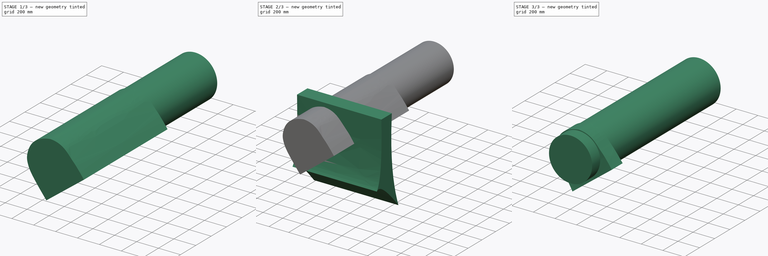
[diagram: build sequence overview — one tinted view per stage of 3, left to right]
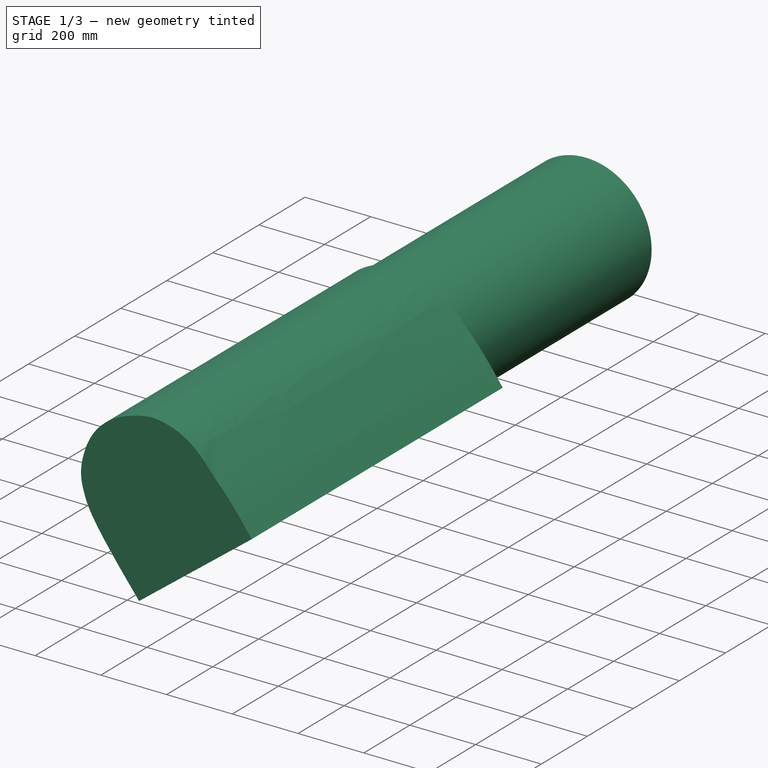
[diagram: stage 1 of 3 — iso view after this stage's code; geometry added in this stage tinted green]
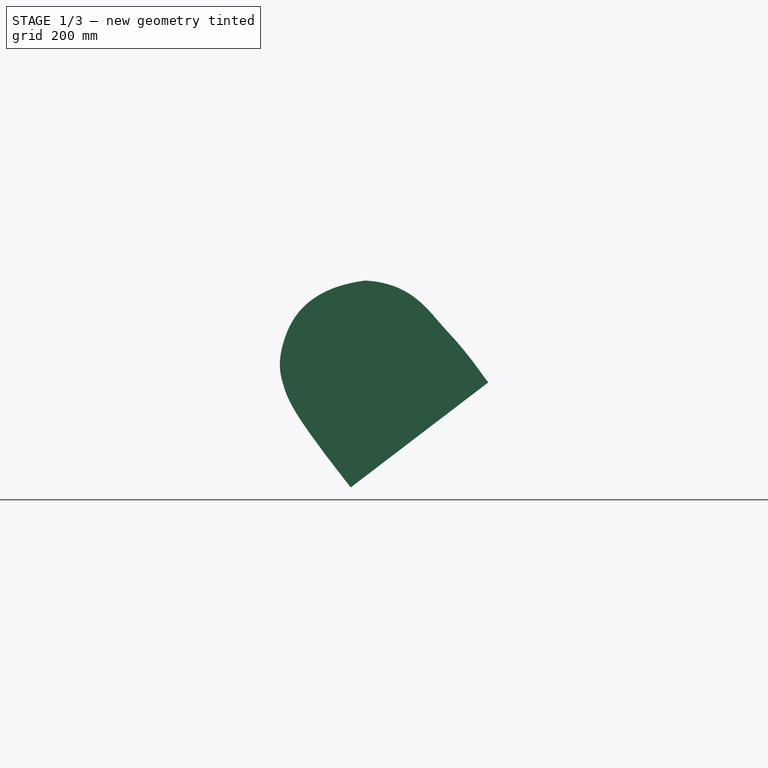
[diagram: stage 1 of 3 — front view after this stage's code; geometry added in this stage tinted green]
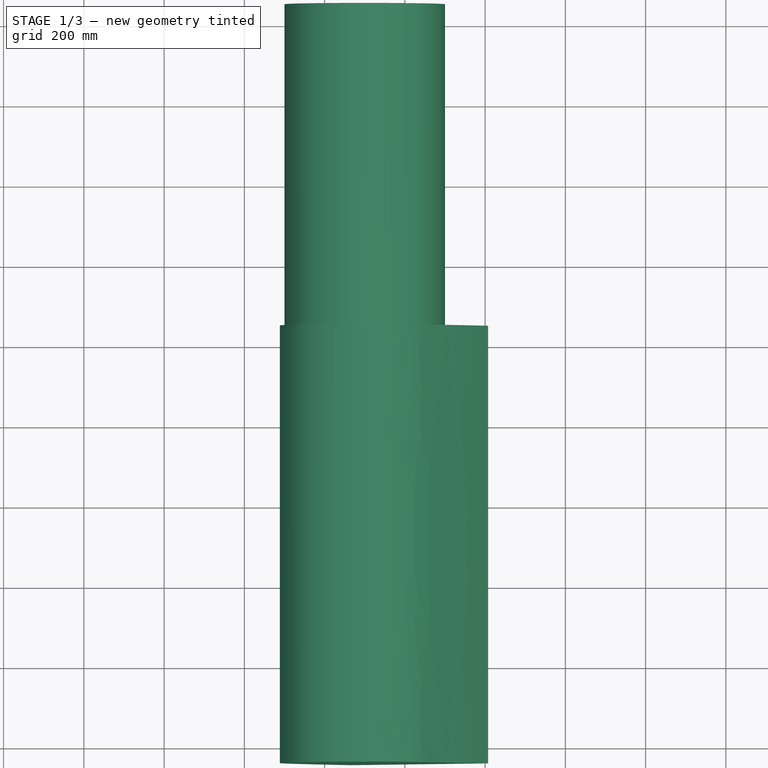
[diagram: stage 1 of 3 — top view after this stage's code; geometry added in this stage tinted green]
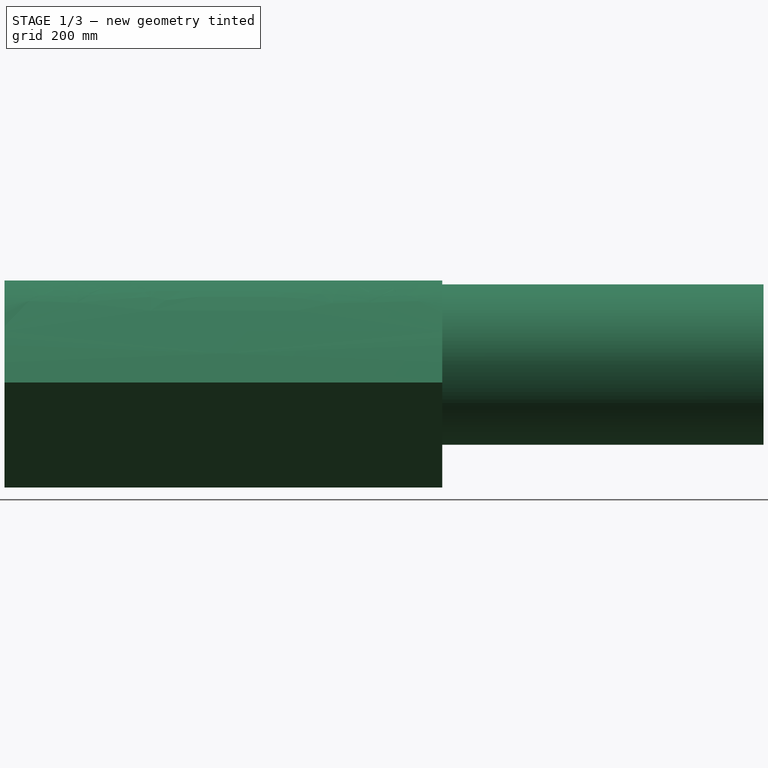
[diagram: stage 1 of 3 — right view after this stage's code; geometry added in this stage tinted green]
FCSTD DOCUMENT  (FreeCAD 0.17R13509 (Git))
Label: grid2
License: All rights reserved
LicenseURL: http://en.wikipedia.org/wiki/All_rights_reserved
objects: Part::Part2DObjectPython×119, Part::Loft×30, Sketcher::SketchObject×4, Part::Cylinder×2, Part::Sweep×2, Part::MultiCommon×1
note: 158 computed .brp shape members not serialized (recipe doc carries the construction recipe); baked Part::Feature solids carry a one-line shape summary decoded from their .brp

FEATURE [Part::Sweep] Sweep001
  Frenet = false
  Sections = -> [Sketch]
  Solid = true
  Spine = -> Sketch002 [Edge1]
  Transition = 1
FEATURE [Part::Part2DObjectPython] DWire  # Draft 2D object (typed FeaturePython)
  ChamferSize = 0
  Closed = false
  End = (4801,0,199)
  FilletRadius = 0
  Length = 3760.13
  MakeFace = false
  Points = (3600) [(5000,0,-3400),(5000,0,-3399),(5000,0,-3398),(5000,0,-3397),(5000,0,-3396),(5000,0,-3395),(5000,0,-3394),(5000,0,-3393),(5000,0,-3392),(5000,0,-3391),+3590 more]
  Start = (5000,0,-3400)
  Subdivisions = 0
FEATURE [Part::Part2DObjectPython] DWire001  # Draft 2D object (typed FeaturePython)
  ChamferSize = 0
  Closed = false
  End = (4844.69,-1236.5,-2902)
  FilletRadius = 0
  Length = 706.388
  MakeFace = false
  Points = (32) [(4943.78,-747.667,-3402),(4941.27,-764.109,-3385.33),(4938.7,-780.542,-3368.67),(4936.08,-796.967,-3352),(4933.4,-813.382,-3335.33),+27 more]
  Start = (4943.78,-747.667,-3402)
  Subdivisions = 0
FEATURE [Part::Part2DObjectPython] DWire002  # Draft 2D object (typed FeaturePython)
  ChamferSize = 0
  Closed = false
  End = (4845.65,-1232.75,-2898)
  FilletRadius = 0
  Length = 706.443
  MakeFace = false
  Points = (32) [(4944.37,-743.764,-3398),(4941.87,-760.21,-3381.33),(4939.31,-776.647,-3364.67),(4936.7,-793.075,-3348),(4934.04,-809.495,-3331.33),+27 more]
  Start = (4944.37,-743.764,-3398)
  Subdivisions = 0
FEATURE [Part::Part2DObjectPython] DWire003  # Draft 2D object (typed FeaturePython)
  ChamferSize = 0
  Closed = false
  End = (4430.27,-1238.01,-2898)
  FilletRadius = 0
  Length = 856.312
  MakeFace = false
  Points = (32) [(4538.7,-748.463,-3398),(4542.36,-761.665,-3381.33),(4564.67,-778.131,-3364.67),(4584.7,-794.589,-3348),(4601.45,-811.038,-3331.33),+27 more]
  Start = (4538.7,-748.463,-3398)
  Subdivisions = 0
FEATURE [Part::Part2DObjectPython] DWire004  # Draft 2D object (typed FeaturePython)
  ChamferSize = 0
  Closed = false
  End = (4429.23,-1241.73,-2902)
  FilletRadius = 0
  Length = 857.628
  MakeFace = false
  Points = (32) [(4538.05,-752.374,-3402),(4542.36,-765.665,-3385.33),(4564.67,-782.131,-3368.67),(4584.7,-798.589,-3352),(4601.45,-815.038,-3335.33),+27 more]
  Start = (4538.05,-752.374,-3402)
  Subdivisions = 0
FEATURE [Part::Loft] Loft
  Closed = true
  MaxDegree = 5
  Ruled = true
  Sections = -> [DWire001,DWire002,DWire003,DWire004]
  Solid = false
FEATURE [Part::Part2DObjectPython] DWire005  # Draft 2D object (typed FeaturePython)
  ChamferSize = 0
  Closed = false
  End = (4845.65,1232.75,-2898)
  FilletRadius = 0
  Length = 706.443
  MakeFace = false
  Points = (32) [(4944.37,743.764,-3398),(4941.87,760.21,-3381.33),(4939.31,776.647,-3364.67),(4936.7,793.075,-3348),(4934.04,809.495,-3331.33),+27 more]
  Start = (4944.37,743.764,-3398)
  Subdivisions = 0
FEATURE [Part::Part2DObjectPython] DWire006  # Draft 2D object (typed FeaturePython)
  ChamferSize = 0
  Closed = false
  End = (4844.69,1236.5,-2902)
  FilletRadius = 0
  Length = 706.388
  MakeFace = false
  Points = (32) [(4943.78,747.667,-3402),(4941.27,764.109,-3385.33),(4938.7,780.542,-3368.67),(4936.08,796.967,-3352),(4933.4,813.382,-3335.33),+27 more]
  Start = (4943.78,747.667,-3402)
  Subdivisions = 0
FEATURE [Part::Part2DObjectPython] DWire007  # Draft 2D object (typed FeaturePython)
  ChamferSize = 0
  Closed = false
  End = (4429.23,1241.73,-2902)
  FilletRadius = 0
  Length = 857.628
  MakeFace = false
  Points = (32) [(4538.05,752.374,-3402),(4542.36,765.665,-3385.33),(4564.67,782.131,-3368.67),(4584.7,798.589,-3352),(4601.45,815.038,-3335.33),+27 more]
  Start = (4538.05,752.374,-3402)
  Subdivisions = 0
FEATURE [Part::Part2DObjectPython] DWire008  # Draft 2D object (typed FeaturePython)
  ChamferSize = 0
  Closed = false
  End = (4430.27,1238.01,-2898)
  FilletRadius = 0
  Length = 856.312
  MakeFace = false
  Points = (32) [(4538.7,748.463,-3398),(4542.36,761.665,-3381.33),(4564.67,778.131,-3364.67),(4584.7,794.589,-3348),(4601.45,811.038,-3331.33),+27 more]
  Start = (4538.7,748.463,-3398)
  Subdivisions = 0
FEATURE [Part::Loft] Loft001
  Closed = true
  MaxDegree = 5
  Ruled = true
  Sections = -> [DWire005,DWire006,DWire007,DWire008]
  Solid = false
FEATURE [Part::Part2DObjectPython] DWire009  # Draft 2D object (typed FeaturePython)
  ChamferSize = 0
  Closed = false
  End = (4844.69,-1236.5,-2402)
  FilletRadius = 0
  Length = 1412.78
  MakeFace = false
  Points = (64) [(4993.68,-251.389,-3402),(4992.81,-267.999,-3385.33),(4991.89,-284.607,-3368.67),(4990.92,-301.211,-3352),(4989.89,-317.813,-3335.33),+59 more]
  Start = (4993.68,-251.389,-3402)
  Subdivisions = 0
FEATURE [Part::Part2DObjectPython] DWire010  # Draft 2D object (typed FeaturePython)
  ChamferSize = 0
  Closed = false
  End = (4845.65,-1232.75,-2398)
  FilletRadius = 0
  Length = 1412.86
  MakeFace = false
  Points = (64) [(4993.88,-247.407,-3398),(4993.02,-264.019,-3381.33),(4992.12,-280.628,-3364.67),(4991.16,-297.234,-3348),(4990.14,-313.836,-3331.33),+59 more]
  Start = (4993.88,-247.407,-3398)
  Subdivisions = 0
FEATURE [Part::Part2DObjectPython] DWire011  # Draft 2D object (typed FeaturePython)
  ChamferSize = 0
  Closed = false
  End = (4430.27,-1238.01,-2398)
  FilletRadius = 0
  Length = 1706.38
  MakeFace = false
  Points = (64) [(4593.24,-249.225,-3398),(4593.91,-264.54,-3381.33),(4617.88,-281.181,-3364.67),(4639.56,-297.819,-3348),(4657.97,-314.453,-3331.33),+59 more]
  Start = (4593.24,-249.225,-3398)
  Subdivisions = 0
FEATURE [Part::Part2DObjectPython] DWire012  # Draft 2D object (typed FeaturePython)
  ChamferSize = 0
  Closed = false
  End = (4429.23,-1241.73,-2402)
  FilletRadius = 0
  Length = 1707.97
  MakeFace = false
  Points = (64) [(4593.02,-253.234,-3402),(4593.91,-268.54,-3385.33),(4617.88,-285.181,-3368.67),(4639.56,-301.819,-3352),(4657.97,-318.453,-3335.33),+59 more]
  Start = (4593.02,-253.234,-3402)
  Subdivisions = 0
FEATURE [Part::Loft] Loft002
  Closed = true
  MaxDegree = 5
  Ruled = true
  Sections = -> [DWire009,DWire010,DWire011,DWire012]
  Solid = false
FEATURE [Part::Part2DObjectPython] DWire013  # Draft 2D object (typed FeaturePython)
  ChamferSize = 0
  Closed = false
  End = (4845.65,1232.75,-2398)
  FilletRadius = 0
  Length = 1412.86
  MakeFace = false
  Points = (64) [(4993.88,247.407,-3398),(4993.02,264.019,-3381.33),(4992.12,280.628,-3364.67),(4991.16,297.234,-3348),(4990.14,313.836,-3331.33),+59 more]
  Start = (4993.88,247.407,-3398)
  Subdivisions = 0
FEATURE [Part::Part2DObjectPython] DWire014  # Draft 2D object (typed FeaturePython)
  ChamferSize = 0
  Closed = false
  End = (4844.69,1236.5,-2402)
  FilletRadius = 0
  Length = 1412.78
  MakeFace = false
  Points = (64) [(4993.68,251.389,-3402),(4992.81,267.999,-3385.33),(4991.89,284.607,-3368.67),(4990.92,301.211,-3352),(4989.89,317.813,-3335.33),+59 more]
  Start = (4993.68,251.389,-3402)
  Subdivisions = 0
FEATURE [Part::Part2DObjectPython] DWire015  # Draft 2D object (typed FeaturePython)
  ChamferSize = 0
  Closed = false
  End = (4429.23,1241.73,-2402)
  FilletRadius = 0
  Length = 1707.97
  MakeFace = false
  Points = (64) [(4593.02,253.234,-3402),(4593.91,268.54,-3385.33),(4617.88,285.181,-3368.67),(4639.56,301.819,-3352),(4657.97,318.453,-3335.33),+59 more]
  Start = (4593.02,253.234,-3402)
  Subdivisions = 0
FEATURE [Part::Part2DObjectPython] DWire016  # Draft 2D object (typed FeaturePython)
  ChamferSize = 0
  Closed = false
  End = (4430.27,1238.01,-2398)
  FilletRadius = 0
  Length = 1706.38
  MakeFace = false
  Points = (64) [(4593.24,249.225,-3398),(4593.91,264.54,-3381.33),(4617.88,281.181,-3364.67),(4639.56,297.819,-3348),(4657.97,314.453,-3331.33),+59 more]
  Start = (4593.24,249.225,-3398)
  Subdivisions = 0
FEATURE [Part::Loft] Loft003
  Closed = true
  MaxDegree = 5
  Ruled = true
  Sections = -> [DWire013,DWire014,DWire015,DWire016]
  Solid = false
FEATURE [Part::Part2DObjectPython] DWire017  # Draft 2D object (typed FeaturePython)
  ChamferSize = 0
  Closed = false
  End = (4844.69,-1236.5,-1902)
  FilletRadius = 0
  Length = 1624.7
  MakeFace = false
  Points = (74) [(4998.96,-101.789,-3052),(4998.6,-118.418,-3035.33),(4998.18,-135.046,-3018.67),(4997.7,-151.672,-3002),(4997.17,-168.297,-2985.33),+69 more]
  Start = (4998.96,-101.789,-3052)
  Subdivisions = 0
FEATURE [Part::Part2DObjectPython] DWire018  # Draft 2D object (typed FeaturePython)
  ChamferSize = 0
  Closed = false
  End = (4845.65,-1232.75,-1898)
  FilletRadius = 0
  Length = 1624.78
  MakeFace = false
  Points = (74) [(4999.04,-97.7985,-3048),(4998.69,-114.428,-3031.33),(4998.28,-131.057,-3014.67),(4997.82,-147.684,-2998),(4997.3,-164.31,-2981.33),+69 more]
  Start = (4999.04,-97.7985,-3048)
  Subdivisions = 0
FEATURE [Part::Part2DObjectPython] DWire019  # Draft 2D object (typed FeaturePython)
  ChamferSize = 0
  Closed = false
  End = (4430.27,-1238.01,-1898)
  FilletRadius = 0
  Length = 1956.46
  MakeFace = false
  Points = (74) [(4693.01,-97.9926,-3048),(4698.09,-114.656,-3031.33),(4697.67,-131.317,-3014.67),(4691.76,-147.978,-2998),(4680.6,-164.636,-2981.33),+69 more]
  Start = (4693.01,-97.9926,-3048)
  Subdivisions = 0
FEATURE [Part::Part2DObjectPython] DWire020  # Draft 2D object (typed FeaturePython)
  ChamferSize = 0
  Closed = false
  End = (4429.23,-1241.73,-1902)
  FilletRadius = 0
  Length = 1958.07
  MakeFace = false
  Points = (74) [(4693.01,-101.993,-3052),(4698.09,-118.656,-3035.33),(4697.67,-135.317,-3018.67),(4691.76,-151.978,-3002),(4680.6,-168.636,-2985.33),+69 more]
  Start = (4693.01,-101.993,-3052)
  Subdivisions = 0
FEATURE [Part::Loft] Loft004
  Closed = true
  MaxDegree = 5
  Ruled = true
  Sections = -> [DWire017,DWire018,DWire019,DWire020]
  Solid = false
FEATURE [Part::Part2DObjectPython] DWire021  # Draft 2D object (typed FeaturePython)
  ChamferSize = 0
  Closed = false
  End = (4845.65,1232.75,-1898)
  FilletRadius = 0
  Length = 1624.78
  MakeFace = false
  Points = (74) [(4999.04,97.7985,-3048),(4998.69,114.428,-3031.33),(4998.28,131.057,-3014.67),(4997.82,147.684,-2998),(4997.3,164.31,-2981.33),+69 more]
  Start = (4999.04,97.7985,-3048)
  Subdivisions = 0
FEATURE [Part::Part2DObjectPython] DWire022  # Draft 2D object (typed FeaturePython)
  ChamferSize = 0
  Closed = false
  End = (4844.69,1236.5,-1902)
  FilletRadius = 0
  Length = 1624.7
  MakeFace = false
  Points = (74) [(4998.96,101.789,-3052),(4998.6,118.418,-3035.33),(4998.18,135.046,-3018.67),(4997.7,151.672,-3002),(4997.17,168.297,-2985.33),+69 more]
  Start = (4998.96,101.789,-3052)
  Subdivisions = 0
FEATURE [Part::Part2DObjectPython] DWire023  # Draft 2D object (typed FeaturePython)
  ChamferSize = 0
  Closed = false
  End = (4429.23,1241.73,-1902)
  FilletRadius = 0
  Length = 1958.07
  MakeFace = false
  Points = (74) [(4693.01,101.993,-3052),(4698.09,118.656,-3035.33),(4697.67,135.317,-3018.67),(4691.76,151.978,-3002),(4680.6,168.636,-2985.33),+69 more]
  Start = (4693.01,101.993,-3052)
  Subdivisions = 0
FEATURE [Part::Part2DObjectPython] DWire024  # Draft 2D object (typed FeaturePython)
  ChamferSize = 0
  Closed = false
  End = (4430.27,1238.01,-1898)
  FilletRadius = 0
  Length = 1956.46
  MakeFace = false
  Points = (74) [(4693.01,97.9926,-3048),(4698.09,114.656,-3031.33),(4697.67,131.317,-3014.67),(4691.76,147.978,-2998),(4680.6,164.636,-2981.33),+69 more]
  Start = (4693.01,97.9926,-3048)
  Subdivisions = 0
FEATURE [Part::Loft] Loft005
  Closed = true
  MaxDegree = 5
  Ruled = true
  Sections = -> [DWire021,DWire022,DWire023,DWire024]
  Solid = false
FEATURE [Part::Part2DObjectPython] DWire025  # Draft 2D object (typed FeaturePython)
  ChamferSize = 0
  Closed = false
  End = (4844.69,-1236.5,-1402)
  FilletRadius = 0
  Length = 2825.6
  MakeFace = false
  Points = (128) [(4944.37,743.764,-3402),(4946.82,727.31,-3385.33),(4949.21,710.849,-3368.67),(4951.55,694.379,-3352),(4953.83,677.902,-3335.33),+123 more]
  Start = (4944.37,743.764,-3402)
  Subdivisions = 0
FEATURE [Part::Part2DObjectPython] DWire026  # Draft 2D object (typed FeaturePython)
  ChamferSize = 0
  Closed = false
  End = (4845.65,-1232.75,-1398)
  FilletRadius = 0
  Length = 2825.65
  MakeFace = false
  Points = (128) [(4943.78,747.667,-3398),(4946.24,731.218,-3381.33),(4948.65,714.76,-3364.67),(4951,698.294,-3348),(4953.29,681.82,-3331.33),+123 more]
  Start = (4943.78,747.667,-3398)
  Subdivisions = 0
FEATURE [Part::Part2DObjectPython] DWire027  # Draft 2D object (typed FeaturePython)
  ChamferSize = 0
  Closed = false
  End = (4430.28,-1238.01,-1398)
  FilletRadius = 0
  Length = 3406.03
  MakeFace = false
  Points = (128) [(4538.05,752.374,-3398),(4547.34,732.707,-3381.33),(4574.63,716.215,-3364.67),(4599.64,699.716,-3348),(4621.38,683.208,-3331.33),+123 more]
  Start = (4538.05,752.374,-3398)
  Subdivisions = 0
FEATURE [Part::Part2DObjectPython] DWire028  # Draft 2D object (typed FeaturePython)
  ChamferSize = 0
  Closed = false
  End = (4429.23,-1241.73,-1402)
  FilletRadius = 0
  Length = 3407.35
  MakeFace = false
  Points = (128) [(4538.7,748.463,-3402),(4547.34,728.707,-3385.33),(4574.63,712.215,-3368.67),(4599.64,695.716,-3352),(4621.38,679.208,-3335.33),+123 more]
  Start = (4538.7,748.463,-3402)
  Subdivisions = 0
FEATURE [Part::Loft] Loft006
  Closed = true
  MaxDegree = 5
  Ruled = true
  Sections = -> [DWire025,DWire026,DWire027,DWire028]
  Solid = false
FEATURE [Part::Part2DObjectPython] DWire029  # Draft 2D object (typed FeaturePython)
  ChamferSize = 0
  Closed = false
  End = (4845.65,1232.75,-1398)
  FilletRadius = 0
  Length = 2825.65
  MakeFace = false
  Points = (128) [(4943.78,-747.667,-3398),(4946.24,-731.218,-3381.33),(4948.65,-714.76,-3364.67),(4951,-698.294,-3348),(4953.29,-681.82,-3331.33),+123 more]
  Start = (4943.78,-747.667,-3398)
  Subdivisions = 0
FEATURE [Part::Part2DObjectPython] DWire030  # Draft 2D object (typed FeaturePython)
  ChamferSize = 0
  Closed = false
  End = (4844.69,1236.5,-1402)
  FilletRadius = 0
  Length = 2825.6
  MakeFace = false
  Points = (128) [(4944.37,-743.764,-3402),(4946.82,-727.31,-3385.33),(4949.21,-710.849,-3368.67),(4951.55,-694.379,-3352),(4953.83,-677.902,-3335.33),+123 more]
  Start = (4944.37,-743.764,-3402)
  Subdivisions = 0
FEATURE [Part::Part2DObjectPython] DWire031  # Draft 2D object (typed FeaturePython)
  ChamferSize = 0
  Closed = false
  End = (4429.23,1241.73,-1402)
  FilletRadius = 0
  Length = 3407.35
  MakeFace = false
  Points = (128) [(4538.7,-748.463,-3402),(4547.34,-728.707,-3385.33),(4574.63,-712.215,-3368.67),(4599.64,-695.716,-3352),(4621.38,-679.208,-3335.33),+123 more]
  Start = (4538.7,-748.463,-3402)
  Subdivisions = 0
FEATURE [Part::Part2DObjectPython] DWire032  # Draft 2D object (typed FeaturePython)
  ChamferSize = 0
  Closed = false
  End = (4430.28,1238.01,-1398)
  FilletRadius = 0
  Length = 3406.03
  MakeFace = false
  Points = (128) [(4538.05,-752.374,-3398),(4547.34,-732.707,-3381.33),(4574.63,-716.215,-3364.67),(4599.64,-699.716,-3348),(4621.38,-683.208,-3331.33),+123 more]
  Start = (4538.05,-752.374,-3398)
  Subdivisions = 0
FEATURE [Part::Loft] Loft007
  Closed = true
  MaxDegree = 5
  Ruled = true
  Sections = -> [DWire029,DWire030,DWire031,DWire032]
  Solid = false
FEATURE [Part::Part2DObjectPython] DWire033  # Draft 2D object (typed FeaturePython)
  ChamferSize = 0
  Closed = false
  End = (4941,-1261.09,-902)
  FilletRadius = 0
  Length = 3543
  MakeFace = false
  Points = (160) [(4845.65,1232.75,-3402),(4849.72,1216.62,-3385.33),(4853.75,1200.48,-3368.67),(4857.71,1184.32,-3352),(4861.63,1168.16,-3335.33),+155 more]
  Start = (4845.65,1232.75,-3402)
  Subdivisions = 0
FEATURE [Part::Part2DObjectPython] DWire034  # Draft 2D object (typed FeaturePython)
  ChamferSize = 0
  Closed = false
  End = (4943.12,-1257.64,-898)
  FilletRadius = 0
  Length = 3543.23
  MakeFace = false
  Points = (160) [(4844.69,1236.5,-3398),(4848.78,1220.38,-3381.33),(4852.81,1204.24,-3364.67),(4856.79,1188.09,-3348),(4860.72,1171.93,-3331.33),+155 more]
  Start = (4844.69,1236.5,-3398)
  Subdivisions = 0
FEATURE [Part::Part2DObjectPython] DWire035  # Draft 2D object (typed FeaturePython)
  ChamferSize = 0
  Closed = false
  End = (4527.77,-1262.92,-898)
  FilletRadius = 0
  Length = 4263.55
  MakeFace = false
  Points = (160) [(4429.23,1241.73,-3398),(4449.68,1222.86,-3381.33),(4478.61,1206.7,-3364.67),(4505.25,1190.51,-3348),(4528.62,1174.32,-3331.33),+155 more]
  Start = (4429.23,1241.73,-3398)
  Subdivisions = 0
FEATURE [Part::Part2DObjectPython] DWire036  # Draft 2D object (typed FeaturePython)
  ChamferSize = 0
  Closed = false
  End = (4525.57,-1266.31,-902)
  FilletRadius = 0
  Length = 4264.43
  MakeFace = false
  Points = (160) [(4430.27,1238.01,-3402),(4449.68,1218.86,-3385.33),(4478.61,1202.7,-3368.67),(4505.25,1186.51,-3352),(4528.62,1170.32,-3335.33),+155 more]
  Start = (4430.27,1238.01,-3402)
  Subdivisions = 0
FEATURE [Part::Loft] Loft008
  Closed = true
  MaxDegree = 5
  Ruled = true
  Sections = -> [DWire033,DWire034,DWire035,DWire036]
  Solid = false
FEATURE [Part::Part2DObjectPython] DWire037  # Draft 2D object (typed FeaturePython)
  ChamferSize = 0
  Closed = false
  End = (4943.12,1257.64,-898)
  FilletRadius = 0
  Length = 3543.23
  MakeFace = false
  Points = (160) [(4844.69,-1236.5,-3398),(4848.78,-1220.38,-3381.33),(4852.81,-1204.24,-3364.67),(4856.79,-1188.09,-3348),(4860.72,-1171.93,-3331.33),+155 more]
  Start = (4844.69,-1236.5,-3398)
  Subdivisions = 0
FEATURE [Part::Part2DObjectPython] DWire038  # Draft 2D object (typed FeaturePython)
  ChamferSize = 0
  Closed = false
  End = (4941,1261.09,-902)
  FilletRadius = 0
  Length = 3543
  MakeFace = false
  Points = (160) [(4845.65,-1232.75,-3402),(4849.72,-1216.62,-3385.33),(4853.75,-1200.48,-3368.67),(4857.71,-1184.32,-3352),(4861.63,-1168.16,-3335.33),+155 more]
  Start = (4845.65,-1232.75,-3402)
  Subdivisions = 0
FEATURE [Part::Part2DObjectPython] DWire039  # Draft 2D object (typed FeaturePython)
  ChamferSize = 0
  Closed = false
  End = (4525.57,1266.31,-902)
  FilletRadius = 0
  Length = 4264.43
  MakeFace = false
  Points = (160) [(4430.27,-1238.01,-3402),(4449.68,-1218.86,-3385.33),(4478.61,-1202.7,-3368.67),(4505.25,-1186.51,-3352),(4528.62,-1170.32,-3335.33),+155 more]
  Start = (4430.27,-1238.01,-3402)
  Subdivisions = 0
FEATURE [Part::Part2DObjectPython] DWire040  # Draft 2D object (typed FeaturePython)
  ChamferSize = 0
  Closed = false
  End = (4527.77,1262.92,-898)
  FilletRadius = 0
  Length = 4263.55
  MakeFace = false
  Points = (160) [(4429.23,-1241.73,-3398),(4449.68,-1222.86,-3381.33),(4478.61,-1206.7,-3364.67),(4505.25,-1190.51,-3348),(4528.62,-1174.32,-3331.33),+155 more]
  Start = (4429.23,-1241.73,-3398)
  Subdivisions = 0
FEATURE [Part::Loft] Loft009
  Closed = true
  MaxDegree = 5
  Ruled = true
  Sections = -> [DWire037,DWire038,DWire039,DWire040]
  Solid = false
FEATURE [Part::Part2DObjectPython] DWire041  # Draft 2D object (typed FeaturePython)
  ChamferSize = 0
  Closed = false
  End = (5065.28,-1026.76,-652)
  FilletRadius = 0
  Length = 3201.21
  MakeFace = false
  Points = (144) [(4845.65,1232.75,-2902),(4849.72,1216.62,-2885.33),(4853.75,1200.48,-2868.67),(4857.71,1184.32,-2852),(4861.63,1168.16,-2835.33),+139 more]
  Start = (4845.65,1232.75,-2902)
  Subdivisions = 0
FEATURE [Part::Part2DObjectPython] DWire042  # Draft 2D object (typed FeaturePython)
  ChamferSize = 0
  Closed = false
  End = (5066.94,-1023.1,-648)
  FilletRadius = 0
  Length = 3201.44
  MakeFace = false
  Points = (144) [(4844.69,1236.5,-2898),(4848.78,1220.38,-2881.33),(4852.81,1204.24,-2864.67),(4856.79,1188.09,-2848),(4860.72,1171.93,-2831.33),+139 more]
  Start = (4844.69,1236.5,-2898)
  Subdivisions = 0
FEATURE [Part::Part2DObjectPython] DWire043  # Draft 2D object (typed FeaturePython)
  ChamferSize = 0
  Closed = false
  End = (4656.99,-1028.46,-648)
  FilletRadius = 0
  Length = 3845.9
  MakeFace = false
  Points = (144) [(4429.23,1241.73,-2898),(4449.68,1222.86,-2881.33),(4478.61,1206.7,-2864.67),(4505.25,1190.51,-2848),(4528.62,1174.32,-2831.33),+139 more]
  Start = (4429.23,1241.73,-2898)
  Subdivisions = 0
FEATURE [Part::Part2DObjectPython] DWire044  # Draft 2D object (typed FeaturePython)
  ChamferSize = 0
  Closed = false
  End = (4655.26,-1032.1,-652)
  FilletRadius = 0
  Length = 3845.93
  MakeFace = false
  Points = (144) [(4430.27,1238.01,-2902),(4449.68,1218.86,-2885.33),(4478.61,1202.7,-2868.67),(4505.25,1186.51,-2852),(4528.62,1170.32,-2835.33),+139 more]
  Start = (4430.27,1238.01,-2902)
  Subdivisions = 0
FEATURE [Part::Loft] Loft010
  Closed = true
  MaxDegree = 5
  Ruled = true
  Sections = -> [DWire041,DWire042,DWire043,DWire044]
  Solid = false
FEATURE [Part::Part2DObjectPython] DWire045  # Draft 2D object (typed FeaturePython)
  ChamferSize = 0
  Closed = false
  End = (5066.94,1023.1,-648)
  FilletRadius = 0
  Length = 3201.44
  MakeFace = false
  Points = (144) [(4844.69,-1236.5,-2898),(4848.78,-1220.38,-2881.33),(4852.81,-1204.24,-2864.67),(4856.79,-1188.09,-2848),(4860.72,-1171.93,-2831.33),+139 more]
  Start = (4844.69,-1236.5,-2898)
  Subdivisions = 0
FEATURE [Part::Part2DObjectPython] DWire046  # Draft 2D object (typed FeaturePython)
  ChamferSize = 0
  Closed = false
  End = (5065.28,1026.76,-652)
  FilletRadius = 0
  Length = 3201.21
  MakeFace = false
  Points = (144) [(4845.65,-1232.75,-2902),(4849.72,-1216.62,-2885.33),(4853.75,-1200.48,-2868.67),(4857.71,-1184.32,-2852),(4861.63,-1168.16,-2835.33),+139 more]
  Start = (4845.65,-1232.75,-2902)
  Subdivisions = 0
FEATURE [Part::Part2DObjectPython] DWire047  # Draft 2D object (typed FeaturePython)
  ChamferSize = 0
  Closed = false
  End = (4655.26,1032.1,-652)
  FilletRadius = 0
  Length = 3845.93
  MakeFace = false
  Points = (144) [(4430.27,-1238.01,-2902),(4449.68,-1218.86,-2885.33),(4478.61,-1202.7,-2868.67),(4505.25,-1186.51,-2852),(4528.62,-1170.32,-2835.33),+139 more]
  Start = (4430.27,-1238.01,-2902)
  Subdivisions = 0
FEATURE [Part::Part2DObjectPython] DWire048  # Draft 2D object (typed FeaturePython)
  ChamferSize = 0
  Closed = false
  End = (4656.99,1028.46,-648)
  FilletRadius = 0
  Length = 3845.9
  MakeFace = false
  Points = (144) [(4429.23,-1241.73,-2898),(4449.68,-1222.86,-2881.33),(4478.61,-1206.7,-2864.67),(4505.25,-1190.51,-2848),(4528.62,-1174.32,-2831.33),+139 more]
  Start = (4429.23,-1241.73,-2898)
  Subdivisions = 0
FEATURE [Part::Loft] Loft011
  Closed = true
  MaxDegree = 5
  Ruled = true
  Sections = -> [DWire045,DWire046,DWire047,DWire048]
  Solid = false
FEATURE [Part::Part2DObjectPython] DWire049  # Draft 2D object (typed FeaturePython)
  ChamferSize = 0
  Closed = false
  End = (5136.81,-804.76,-430)
  FilletRadius = 0
  Length = 2856.19
  MakeFace = false
  Points = (128) [(4845.65,1232.75,-2402),(4849.72,1216.62,-2385.33),(4853.75,1200.48,-2368.67),(4857.71,1184.32,-2352),(4861.63,1168.16,-2335.33),+123 more]
  Start = (4845.65,1232.75,-2402)
  Subdivisions = 0
FEATURE [Part::Part2DObjectPython] DWire050  # Draft 2D object (typed FeaturePython)
  ChamferSize = 0
  Closed = false
  End = (5144.71,-746.078,-370)
  FilletRadius = 0
  Length = 2858.2
  MakeFace = false
  Points = (128) [(4844.69,1236.5,-2398),(4848.78,1220.38,-2381.33),(4852.81,1204.24,-2364.67),(4856.79,1188.09,-2348),(4860.72,1171.93,-2331.33),+123 more]
  Start = (4844.69,1236.5,-2398)
  Subdivisions = 0
FEATURE [Part::Part2DObjectPython] DWire051  # Draft 2D object (typed FeaturePython)
  ChamferSize = 0
  Closed = false
  End = (4739.44,-750.695,-370)
  FilletRadius = 0
  Length = 3423.06
  MakeFace = false
  Points = (128) [(4429.23,1241.73,-2398),(4449.68,1222.86,-2381.33),(4478.61,1206.7,-2364.67),(4505.25,1190.51,-2348),(4528.62,1174.32,-2331.33),+123 more]
  Start = (4429.23,1241.73,-2398)
  Subdivisions = 0
FEATURE [Part::Part2DObjectPython] DWire052  # Draft 2D object (typed FeaturePython)
  ChamferSize = 0
  Closed = false
  End = (4730.71,-809.492,-430)
  FilletRadius = 0
  Length = 3438.67
  MakeFace = false
  Points = (128) [(4430.27,1238.01,-2402),(4449.68,1218.86,-2385.33),(4478.61,1202.7,-2368.67),(4505.25,1186.51,-2352),(4528.62,1170.32,-2335.33),+123 more]
  Start = (4430.27,1238.01,-2402)
  Subdivisions = 0
FEATURE [Part::Loft] Loft012
  Closed = true
  MaxDegree = 5
  Ruled = true
  Sections = -> [DWire049,DWire050,DWire051,DWire052]
  Solid = false
FEATURE [Part::Part2DObjectPython] DWire053  # Draft 2D object (typed FeaturePython)
  ChamferSize = 0
  Closed = false
  End = (5144.71,746.078,-370)
  FilletRadius = 0
  Length = 2858.2
  MakeFace = false
  Points = (128) [(4844.69,-1236.5,-2398),(4848.78,-1220.38,-2381.33),(4852.81,-1204.24,-2364.67),(4856.79,-1188.09,-2348),(4860.72,-1171.93,-2331.33),+123 more]
  Start = (4844.69,-1236.5,-2398)
  Subdivisions = 0
FEATURE [Part::Part2DObjectPython] DWire054  # Draft 2D object (typed FeaturePython)
  ChamferSize = 0
  Closed = false
  End = (5136.81,804.76,-430)
  FilletRadius = 0
  Length = 2856.19
  MakeFace = false
  Points = (128) [(4845.65,-1232.75,-2402),(4849.72,-1216.62,-2385.33),(4853.75,-1200.48,-2368.67),(4857.71,-1184.32,-2352),(4861.63,-1168.16,-2335.33),+123 more]
  Start = (4845.65,-1232.75,-2402)
  Subdivisions = 0
FEATURE [Part::Part2DObjectPython] DWire055  # Draft 2D object (typed FeaturePython)
  ChamferSize = 0
  Closed = false
  End = (4730.71,809.492,-430)
  FilletRadius = 0
  Length = 3438.67
  MakeFace = false
  Points = (128) [(4430.27,-1238.01,-2402),(4449.68,-1218.86,-2385.33),(4478.61,-1202.7,-2368.67),(4505.25,-1186.51,-2352),(4528.62,-1170.32,-2335.33),+123 more]
  Start = (4430.27,-1238.01,-2402)
  Subdivisions = 0
FEATURE [Part::Part2DObjectPython] DWire056  # Draft 2D object (typed FeaturePython)
  ChamferSize = 0
  Closed = false
  End = (4739.44,750.695,-370)
  FilletRadius = 0
  Length = 3423.06
  MakeFace = false
  Points = (128) [(4429.23,-1241.73,-2398),(4449.68,-1222.86,-2381.33),(4478.61,-1206.7,-2364.67),(4505.25,-1190.51,-2348),(4528.62,-1174.32,-2331.33),+123 more]
  Start = (4429.23,-1241.73,-2398)
  Subdivisions = 0
FEATURE [Part::Loft] Loft013
  Closed = true
  MaxDegree = 5
  Ruled = true
  Sections = -> [DWire053,DWire054,DWire055,DWire056]
  Solid = false
FEATURE [Part::Part2DObjectPython] DWire057  # Draft 2D object (typed FeaturePython)
  ChamferSize = 0
  Closed = false
  End = (5191.42,-289.219,-430)
  FilletRadius = 0
  Length = 2153.38
  MakeFace = false
  Points = (96) [(4845.65,1232.75,-1902),(4849.72,1216.62,-1885.33),(4853.75,1200.48,-1868.67),(4857.71,1184.32,-1852),(4861.63,1168.16,-1835.33),+91 more]
  Start = (4845.65,1232.75,-1902)
  Subdivisions = 0
FEATURE [Part::Part2DObjectPython] DWire058  # Draft 2D object (typed FeaturePython)
  ChamferSize = 0
  Closed = false
  End = (5193.46,-229.448,-370)
  FilletRadius = 0
  Length = 2154.66
  MakeFace = false
  Points = (96) [(4844.69,1236.5,-1898),(4848.78,1220.38,-1881.33),(4852.81,1204.24,-1864.67),(4856.79,1188.09,-1848),(4860.72,1171.93,-1831.33),+91 more]
  Start = (4844.69,1236.5,-1898)
  Subdivisions = 0
FEATURE [Part::Part2DObjectPython] DWire059  # Draft 2D object (typed FeaturePython)
  ChamferSize = 0
  Closed = false
  End = (4792.96,-231.071,-370)
  FilletRadius = 0
  Length = 2577.44
  MakeFace = false
  Points = (96) [(4429.23,1241.73,-1898),(4449.68,1222.86,-1881.33),(4478.61,1206.7,-1864.67),(4505.25,1190.51,-1848),(4528.62,1174.32,-1831.33),+91 more]
  Start = (4429.23,1241.73,-1898)
  Subdivisions = 0
FEATURE [Part::Part2DObjectPython] DWire060  # Draft 2D object (typed FeaturePython)
  ChamferSize = 0
  Closed = false
  End = (4790.63,-291.237,-430)
  FilletRadius = 0
  Length = 2583.92
  MakeFace = false
  Points = (96) [(4430.27,1238.01,-1902),(4449.68,1218.86,-1885.33),(4478.61,1202.7,-1868.67),(4505.25,1186.51,-1852),(4528.62,1170.32,-1835.33),+91 more]
  Start = (4430.27,1238.01,-1902)
  Subdivisions = 0
FEATURE [Part::Loft] Loft014
  Closed = true
  MaxDegree = 5
  Ruled = true
  Sections = -> [DWire057,DWire058,DWire059,DWire060]
  Solid = false
FEATURE [Part::Part2DObjectPython] DWire061  # Draft 2D object (typed FeaturePython)
  ChamferSize = 0
  Closed = false
  End = (5193.46,229.448,-370)
  FilletRadius = 0
  Length = 2154.66
  MakeFace = false
  Points = (96) [(4844.69,-1236.5,-1898),(4848.78,-1220.38,-1881.33),(4852.81,-1204.24,-1864.67),(4856.79,-1188.09,-1848),(4860.72,-1171.93,-1831.33),+91 more]
  Start = (4844.69,-1236.5,-1898)
  Subdivisions = 0
FEATURE [Part::Part2DObjectPython] DWire062  # Draft 2D object (typed FeaturePython)
  ChamferSize = 0
  Closed = false
  End = (5191.42,289.219,-430)
  FilletRadius = 0
  Length = 2153.38
  MakeFace = false
  Points = (96) [(4845.65,-1232.75,-1902),(4849.72,-1216.62,-1885.33),(4853.75,-1200.48,-1868.67),(4857.71,-1184.32,-1852),(4861.63,-1168.16,-1835.33),+91 more]
  Start = (4845.65,-1232.75,-1902)
  Subdivisions = 0
FEATURE [Part::Part2DObjectPython] DWire063  # Draft 2D object (typed FeaturePython)
  ChamferSize = 0
  Closed = false
  End = (4790.63,291.237,-430)
  FilletRadius = 0
  Length = 2583.92
  MakeFace = false
  Points = (96) [(4430.27,-1238.01,-1902),(4449.68,-1218.86,-1885.33),(4478.61,-1202.7,-1868.67),(4505.25,-1186.51,-1852),(4528.62,-1170.32,-1835.33),+91 more]
  Start = (4430.27,-1238.01,-1902)
  Subdivisions = 0
FEATURE [Part::Part2DObjectPython] DWire064  # Draft 2D object (typed FeaturePython)
  ChamferSize = 0
  Closed = false
  End = (4792.96,231.071,-370)
  FilletRadius = 0
  Length = 2577.44
  MakeFace = false
  Points = (96) [(4429.23,-1241.73,-1898),(4449.68,-1222.86,-1881.33),(4478.61,-1206.7,-1864.67),(4505.25,-1190.51,-1848),(4528.62,-1174.32,-1831.33),+91 more]
  Start = (4429.23,-1241.73,-1898)
  Subdivisions = 0
FEATURE [Part::Loft] Loft015
  Closed = true
  MaxDegree = 5
  Ruled = true
  Sections = -> [DWire061,DWire062,DWire063,DWire064]
  Solid = false
FEATURE [Part::Part2DObjectPython] DWire065  # Draft 2D object (typed FeaturePython)
  ChamferSize = 0
  Closed = false
  End = (5140.86,499.509,-665.333)
  FilletRadius = 0
  Length = 1083.19
  MakeFace = false
  Points = (48) [(4845.65,1232.75,-1402),(4849.84,1216.65,-1385.33),(4854.29,1200.62,-1368.67),(4859.01,1184.64,-1352),(4863.91,1168.71,-1335.33),+43 more]
  Start = (4845.65,1232.75,-1402)
  Subdivisions = 0
FEATURE [Part::Part2DObjectPython] DWire066  # Draft 2D object (typed FeaturePython)
  ChamferSize = 0
  Closed = false
  End = (5144.78,530.507,-634.667)
  FilletRadius = 0
  Length = 1084.67
  MakeFace = false
  Points = (48) [(4844.7,1236.5,-1398),(4848.97,1220.43,-1381.33),(4853.51,1204.41,-1364.67),(4858.31,1188.46,-1348),(4863.29,1172.55,-1331.33),+43 more]
  Start = (4844.7,1236.5,-1398)
  Subdivisions = 0
FEATURE [Part::Part2DObjectPython] DWire067  # Draft 2D object (typed FeaturePython)
  ChamferSize = 0
  Closed = false
  End = (4742.08,534.067,-634.667)
  FilletRadius = 0
  Length = 1290.4
  MakeFace = false
  Points = (48) [(4429.24,1241.73,-1398),(4449.84,1222.87,-1381.33),(4479.24,1206.79,-1364.67),(4506.68,1190.78,-1348),(4531.08,1174.81,-1331.33),+43 more]
  Start = (4429.24,1241.73,-1398)
  Subdivisions = 0
FEATURE [Part::Part2DObjectPython] DWire068  # Draft 2D object (typed FeaturePython)
  ChamferSize = 0
  Closed = false
  End = (4738.47,502.86,-665.333)
  FilletRadius = 0
  Length = 1288.58
  MakeFace = false
  Points = (48) [(4430.27,1238.01,-1402),(4449.84,1218.87,-1385.33),(4479.24,1202.79,-1368.67),(4506.68,1186.78,-1352),(4531.08,1170.81,-1335.33),+43 more]
  Start = (4430.27,1238.01,-1402)
  Subdivisions = 0
FEATURE [Part::Loft] Loft016
  Closed = true
  MaxDegree = 5
  Ruled = true
  Sections = -> [DWire065,DWire066,DWire067,DWire068]
  Solid = false
FEATURE [Part::Part2DObjectPython] DWire069  # Draft 2D object (typed FeaturePython)
  ChamferSize = 0
  Closed = false
  End = (5144.78,-530.507,-634.667)
  FilletRadius = 0
  Length = 1084.67
  MakeFace = false
  Points = (48) [(4844.7,-1236.5,-1398),(4848.97,-1220.43,-1381.33),(4853.51,-1204.41,-1364.67),(4858.31,-1188.46,-1348),(4863.29,-1172.55,-1331.33),+43 more]
  Start = (4844.7,-1236.5,-1398)
  Subdivisions = 0
FEATURE [Part::Part2DObjectPython] DWire070  # Draft 2D object (typed FeaturePython)
  ChamferSize = 0
  Closed = false
  End = (5140.86,-499.509,-665.333)
  FilletRadius = 0
  Length = 1083.19
  MakeFace = false
  Points = (48) [(4845.65,-1232.75,-1402),(4849.84,-1216.65,-1385.33),(4854.29,-1200.62,-1368.67),(4859.01,-1184.64,-1352),(4863.91,-1168.71,-1335.33),+43 more]
  Start = (4845.65,-1232.75,-1402)
  Subdivisions = 0
FEATURE [Part::Part2DObjectPython] DWire071  # Draft 2D object (typed FeaturePython)
  ChamferSize = 0
  Closed = false
  End = (4738.47,-502.86,-665.333)
  FilletRadius = 0
  Length = 1288.58
  MakeFace = false
  Points = (48) [(4430.27,-1238.01,-1402),(4449.84,-1218.87,-1385.33),(4479.24,-1202.79,-1368.67),(4506.68,-1186.78,-1352),(4531.08,-1170.81,-1335.33),+43 more]
  Start = (4430.27,-1238.01,-1402)
  Subdivisions = 0
FEATURE [Part::Part2DObjectPython] DWire072  # Draft 2D object (typed FeaturePython)
  ChamferSize = 0
  Closed = false
  End = (4742.08,-534.067,-634.667)
  FilletRadius = 0
  Length = 1290.4
  MakeFace = false
  Points = (48) [(4429.24,-1241.73,-1398),(4449.84,-1222.87,-1381.33),(4479.24,-1206.79,-1364.67),(4506.68,-1190.78,-1348),(4531.08,-1174.81,-1331.33),+43 more]
  Start = (4429.24,-1241.73,-1398)
  Subdivisions = 0
FEATURE [Part::Loft] Loft017
  Closed = true
  MaxDegree = 5
  Ruled = true
  Sections = -> [DWire069,DWire070,DWire071,DWire072]
  Solid = false
FEATURE [Part::Part2DObjectPython] DWire073  # Draft 2D object (typed FeaturePython)
  ChamferSize = 0
  Closed = false
  End = (5144.74,754.072,-422)
  FilletRadius = 0
  Length = 726.528
  MakeFace = false
  Points = (32) [(4941.96,1257.34,-902),(4950.93,1241.44,-886),(4959.83,1225.49,-870),(4968.67,1209.48,-854),(4977.43,1193.42,-838),(4986.1,1177.31,-822),+26 more]
  Start = (4941.96,1257.34,-902)
  Subdivisions = 0
FEATURE [Part::Part2DObjectPython] DWire074  # Draft 2D object (typed FeaturePython)
  ChamferSize = 0
  Closed = false
  End = (5137.76,796.931,-378)
  FilletRadius = 0
  Length = 727.06
  MakeFace = false
  Points = (32) [(4942.17,1261.39,-898),(4951.12,1246.81,-880.667),(4960.02,1232.19,-863.333),(4969.14,1217.58,-846),(4977.89,1202.85,-828.667),+27 more]
  Start = (4942.17,1261.39,-898)
  Subdivisions = 0
FEATURE [Part::Part2DObjectPython] DWire075  # Draft 2D object (typed FeaturePython)
  ChamferSize = 0
  Closed = false
  End = (4731.78,801.648,-378)
  FilletRadius = 0
  Length = 881.374
  MakeFace = false
  Points = (32) [(4526.73,1266.64,-898),(4551.3,1249.14,-880.667),(4585.24,1234.55,-863.333),(4616.89,1219.91,-846),(4644.95,1205.13,-828.667),+27 more]
  Start = (4526.73,1266.64,-898)
  Subdivisions = 0
FEATURE [Part::Part2DObjectPython] DWire076  # Draft 2D object (typed FeaturePython)
  ChamferSize = 0
  Closed = false
  End = (4739.37,758.721,-422)
  FilletRadius = 0
  Length = 878.642
  MakeFace = false
  Points = (32) [(4526.61,1262.59,-902),(4551.3,1243.81,-886),(4585.24,1227.89,-870),(4616.89,1211.91,-854),(4644.95,1195.79,-838),(4669.15,1179.7,-822),+26 more]
  Start = (4526.61,1262.59,-902)
  Subdivisions = 0
FEATURE [Part::Loft] Loft018
  Closed = true
  MaxDegree = 5
  Ruled = true
  Sections = -> [DWire073,DWire074,DWire075,DWire076]
  Solid = false
FEATURE [Part::Part2DObjectPython] DWire077  # Draft 2D object (typed FeaturePython)
  ChamferSize = 0
  Closed = false
  End = (5137.76,-796.931,-378)
  FilletRadius = 0
  Length = 727.06
  MakeFace = false
  Points = (32) [(4942.17,-1261.39,-898),(4951.12,-1246.81,-880.667),(4960.02,-1232.19,-863.333),(4969.14,-1217.58,-846),(4977.89,-1202.85,-828.667),+27 more]
  Start = (4942.17,-1261.39,-898)
  Subdivisions = 0
FEATURE [Part::Part2DObjectPython] DWire078  # Draft 2D object (typed FeaturePython)
  ChamferSize = 0
  Closed = false
  End = (5144.74,-754.072,-422)
  FilletRadius = 0
  Length = 726.528
  MakeFace = false
  Points = (32) [(4941.96,-1257.34,-902),(4950.93,-1241.44,-886),(4959.83,-1225.49,-870),(4968.67,-1209.48,-854),(4977.43,-1193.42,-838),(4986.1,-1177.31,-822),+26 more]
  Start = (4941.96,-1257.34,-902)
  Subdivisions = 0
FEATURE [Part::Part2DObjectPython] DWire079  # Draft 2D object (typed FeaturePython)
  ChamferSize = 0
  Closed = false
  End = (4739.37,-758.721,-422)
  FilletRadius = 0
  Length = 878.642
  MakeFace = false
  Points = (32) [(4526.61,-1262.59,-902),(4551.3,-1243.81,-886),(4585.24,-1227.89,-870),(4616.89,-1211.91,-854),(4644.95,-1195.79,-838),(4669.15,-1179.7,-822),+26 more]
  Start = (4526.61,-1262.59,-902)
  Subdivisions = 0
FEATURE [Part::Part2DObjectPython] DWire080  # Draft 2D object (typed FeaturePython)
  ChamferSize = 0
  Closed = false
  End = (4731.78,-801.648,-378)
  FilletRadius = 0
  Length = 881.374
  MakeFace = false
  Points = (32) [(4526.73,-1266.64,-898),(4551.3,-1249.14,-880.667),(4585.24,-1234.55,-863.333),(4616.89,-1219.91,-846),(4644.95,-1205.13,-828.667),+27 more]
  Start = (4526.73,-1266.64,-898)
  Subdivisions = 0
FEATURE [Part::Loft] Loft019
  Closed = true
  MaxDegree = 5
  Ruled = true
  Sections = -> [DWire077,DWire078,DWire079,DWire080]
  Solid = false
FEATURE [Part::Part2DObjectPython] DWire081  # Draft 2D object (typed FeaturePython)
  ChamferSize = 0
  Closed = false
  End = (4592.95,-254.623,-3400)
  FilletRadius = 0
  Length = 457.618
  MakeFace = false
  Points = (17) [(4693.01,-101.993,-3050),(4708.21,-111.648,-3071.88),(4722.46,-121.265,-3093.75),(4734.84,-130.844,-3115.62),(4744.54,-140.385,-3137.5),+12 more]
  Start = (4693.01,-101.993,-3050)
  Subdivisions = 0
FEATURE [Part::Part2DObjectPython] DWire082  # Draft 2D object (typed FeaturePython)
  ChamferSize = 0
  Closed = false
  End = (4593.17,-250.592,-3400)
  FilletRadius = 0
  Length = 457.483
  MakeFace = false
  Points = (17) [(4693.01,-97.9926,-3050),(4708.21,-107.648,-3071.88),(4722.46,-117.265,-3093.75),(4734.84,-126.844,-3115.62),(4744.54,-136.385,-3137.5),+12 more]
  Start = (4693.01,-97.9926,-3050)
  Subdivisions = 0
FEATURE [Part::Part2DObjectPython] DWire083  # Draft 2D object (typed FeaturePython)
  ChamferSize = 0
  Closed = false
  End = (4993.9,-246.913,-3400)
  FilletRadius = 0
  Length = 380.554
  MakeFace = false
  Points = (17) [(4999.05,-97.6034,-3050),(4998.86,-106.939,-3071.88),(4998.65,-116.275,-3093.75),(4998.42,-125.61,-3115.62),(4998.18,-134.944,-3137.5),+12 more]
  Start = (4999.05,-97.6034,-3050)
  Subdivisions = 0
FEATURE [Part::Part2DObjectPython] DWire084  # Draft 2D object (typed FeaturePython)
  ChamferSize = 0
  Closed = false
  End = (4993.7,-250.888,-3400)
  FilletRadius = 0
  Length = 380.553
  MakeFace = false
  Points = (17) [(4998.97,-101.586,-3050),(4998.77,-110.921,-3071.88),(4998.55,-120.256,-3093.75),(4998.32,-129.591,-3115.62),(4998.07,-138.925,-3137.5),+12 more]
  Start = (4998.97,-101.586,-3050)
  Subdivisions = 0
FEATURE [Part::Loft] Loft020
  Closed = true
  MaxDegree = 5
  Ruled = true
  Sections = -> [DWire081,DWire082,DWire083,DWire084]
  Solid = false
FEATURE [Part::Part2DObjectPython] DWire085  # Draft 2D object (typed FeaturePython)
  ChamferSize = 0
  Closed = false
  End = (4593.17,250.592,-3400)
  FilletRadius = 0
  Length = 457.483
  MakeFace = false
  Points = (17) [(4693.01,97.9926,-3050),(4708.21,107.648,-3071.88),(4722.46,117.265,-3093.75),(4734.84,126.844,-3115.62),(4744.54,136.385,-3137.5),+12 more]
  Start = (4693.01,97.9926,-3050)
  Subdivisions = 0
FEATURE [Part::Part2DObjectPython] DWire086  # Draft 2D object (typed FeaturePython)
  ChamferSize = 0
  Closed = false
  End = (4592.95,254.623,-3400)
  FilletRadius = 0
  Length = 457.618
  MakeFace = false
  Points = (17) [(4693.01,101.993,-3050),(4708.21,111.648,-3071.88),(4722.46,121.265,-3093.75),(4734.84,130.844,-3115.62),(4744.54,140.385,-3137.5),+12 more]
  Start = (4693.01,101.993,-3050)
  Subdivisions = 0
FEATURE [Part::Part2DObjectPython] DWire087  # Draft 2D object (typed FeaturePython)
  ChamferSize = 0
  Closed = false
  End = (4993.7,250.888,-3400)
  FilletRadius = 0
  Length = 380.553
  MakeFace = false
  Points = (17) [(4998.97,101.586,-3050),(4998.77,110.921,-3071.88),(4998.55,120.256,-3093.75),(4998.32,129.591,-3115.62),(4998.07,138.925,-3137.5),+12 more]
  Start = (4998.97,101.586,-3050)
  Subdivisions = 0
FEATURE [Part::Part2DObjectPython] DWire088  # Draft 2D object (typed FeaturePython)
  ChamferSize = 0
  Closed = false
  End = (4993.9,246.913,-3400)
  FilletRadius = 0
  Length = 380.554
  MakeFace = false
  Points = (17) [(4999.05,97.6034,-3050),(4998.86,106.939,-3071.88),(4998.65,116.275,-3093.75),(4998.42,125.61,-3115.62),(4998.18,134.944,-3137.5),+12 more]
  Start = (4999.05,97.6034,-3050)
  Subdivisions = 0
FEATURE [Part::Loft] Loft021
  Closed = true
  MaxDegree = 5
  Ruled = true
  Sections = -> [DWire085,DWire086,DWire087,DWire088]
  Solid = false
FEATURE [Part::Part2DObjectPython] DWire089  # Draft 2D object (typed FeaturePython)
  ChamferSize = 0
  Closed = true
  End = (4693.01,99.9926,-3048)
  FilletRadius = 0
  Length = 1013.95
  MakeFace = true
  Points = (4) [(4693.01,-99.9926,-3048),(5000,-99.9933,-3048),(5000,99.9933,-3048),(4693.01,99.9926,-3048)]
  Start = (4693.01,-99.9926,-3048)
  Subdivisions = 0
FEATURE [Part::Part2DObjectPython] DWire090  # Draft 2D object (typed FeaturePython)
  ChamferSize = 0
  Closed = true
  End = (4693.01,99.9926,-3052)
  FilletRadius = 0
  Length = 1013.95
  MakeFace = true
  Points = (4) [(4693.01,-99.9926,-3052),(5000,-99.9933,-3052),(5000,99.9933,-3052),(4693.01,99.9926,-3052)]
  Start = (4693.01,-99.9926,-3052)
  Subdivisions = 0
FEATURE [Part::Loft] Loft022
  Closed = true
  MaxDegree = 5
  Ruled = true
  Sections = -> [DWire089,DWire090]
  Solid = false
FEATURE [Part::Part2DObjectPython] DWire091  # Draft 2D object (typed FeaturePython)
  ChamferSize = 0
  Closed = false
  End = (4930.97,-999.529,-1150)
  FilletRadius = 0
  Length = 518.675
  MakeFace = false
  Points = (16) [(5065.72,-1026.85,-650),(5057.9,-1025.26,-683.333),(5049.75,-1023.61,-716.667),(5041.12,-1021.86,-750),(5031.84,-1019.98,-783.333),+11 more]
  Start = (5065.72,-1026.85,-650)
  Subdivisions = 0
FEATURE [Part::Part2DObjectPython] DWire092  # Draft 2D object (typed FeaturePython)
  ChamferSize = 0
  Closed = false
  End = (4931.74,-995.694,-1150)
  FilletRadius = 0
  Length = 518.675
  MakeFace = false
  Points = (16) [(5066.5,-1023.01,-650),(5058.68,-1021.43,-683.333),(5050.52,-1019.77,-716.667),(5041.9,-1018.02,-750),(5032.62,-1016.14,-783.333),+11 more]
  Start = (5066.5,-1023.01,-650)
  Subdivisions = 0
FEATURE [Part::Part2DObjectPython] DWire093  # Draft 2D object (typed FeaturePython)
  ChamferSize = 0
  Closed = false
  End = (4521.77,-1001.05,-1150)
  FilletRadius = 0
  Length = 569.819
  MakeFace = false
  Points = (16) [(4656.55,-1028.37,-650),(4658.88,-1023.31,-683.333),(4675.58,-1021.67,-716.667),(4689.58,-1019.94,-750),(4699.72,-1018.05,-783.333),+11 more]
  Start = (4656.55,-1028.37,-650)
  Subdivisions = 0
FEATURE [Part::Part2DObjectPython] DWire094  # Draft 2D object (typed FeaturePython)
  ChamferSize = 0
  Closed = false
  End = (4520.92,-1004.88,-1150)
  FilletRadius = 0
  Length = 570.26
  MakeFace = false
  Points = (16) [(4655.7,-1032.19,-650),(4658.88,-1027.31,-683.333),(4675.58,-1025.67,-716.667),(4689.58,-1023.94,-750),(4699.72,-1022.05,-783.333),+11 more]
  Start = (4655.7,-1032.19,-650)
  Subdivisions = 0
FEATURE [Part::Loft] Loft023
  Closed = true
  MaxDegree = 5
  Ruled = true
  Sections = -> [DWire091,DWire092,DWire093,DWire094]
  Solid = false
FEATURE [Part::Part2DObjectPython] DWire095  # Draft 2D object (typed FeaturePython)
  ChamferSize = 0
  Closed = false
  End = (4931.74,995.694,-1150)
  FilletRadius = 0
  Length = 518.675
  MakeFace = false
  Points = (16) [(5066.5,1023.01,-650),(5058.68,1021.43,-683.333),(5050.52,1019.77,-716.667),(5041.9,1018.02,-750),(5032.62,1016.14,-783.333),+11 more]
  Start = (5066.5,1023.01,-650)
  Subdivisions = 0
FEATURE [Part::Part2DObjectPython] DWire096  # Draft 2D object (typed FeaturePython)
  ChamferSize = 0
  Closed = false
  End = (4930.97,999.529,-1150)
  FilletRadius = 0
  Length = 518.675
  MakeFace = false
  Points = (16) [(5065.72,1026.85,-650),(5057.9,1025.26,-683.333),(5049.75,1023.61,-716.667),(5041.12,1021.86,-750),(5031.84,1019.98,-783.333),+11 more]
  Start = (5065.72,1026.85,-650)
  Subdivisions = 0
FEATURE [Part::Part2DObjectPython] DWire097  # Draft 2D object (typed FeaturePython)
  ChamferSize = 0
  Closed = false
  End = (4520.92,1004.88,-1150)
  FilletRadius = 0
  Length = 570.26
  MakeFace = false
  Points = (16) [(4655.7,1032.19,-650),(4658.88,1027.31,-683.333),(4675.58,1025.67,-716.667),(4689.58,1023.94,-750),(4699.72,1022.05,-783.333),+11 more]
  Start = (4655.7,1032.19,-650)
  Subdivisions = 0
FEATURE [Part::Part2DObjectPython] DWire098  # Draft 2D object (typed FeaturePython)
  ChamferSize = 0
  Closed = false
  End = (4521.77,1001.05,-1150)
  FilletRadius = 0
  Length = 569.819
  MakeFace = false
  Points = (16) [(4656.55,1028.37,-650),(4658.88,1023.31,-683.333),(4675.58,1021.67,-716.667),(4689.58,1019.94,-750),(4699.72,1018.05,-783.333),+11 more]
  Start = (4656.55,1028.37,-650)
  Subdivisions = 0
FEATURE [Part::Loft] Loft024
  Closed = true
  MaxDegree = 5
  Ruled = true
  Sections = -> [DWire095,DWire096,DWire097,DWire098]
  Solid = false
FEATURE [Part::Part2DObjectPython] DWire099  # Draft 2D object (typed FeaturePython)
  ChamferSize = 0
  Closed = false
  End = (5006.02,-503.272,-1150)
  FilletRadius = 0
  Length = 518.675
  MakeFace = false
  Points = (16) [(5142.83,-516.999,-650),(5134.89,-516.202,-683.333),(5126.61,-515.371,-716.667),(5117.85,-514.493,-750),(5108.43,-513.547,-783.333),+11 more]
  Start = (5142.83,-516.999,-650)
  Subdivisions = 0
FEATURE [Part::Part2DObjectPython] DWire100  # Draft 2D object (typed FeaturePython)
  ChamferSize = 0
  Closed = false
  End = (5006.41,-499.319,-1150)
  FilletRadius = 0
  Length = 518.675
  MakeFace = false
  Points = (16) [(5143.22,-513.046,-650),(5135.28,-512.249,-683.333),(5127,-511.419,-716.667),(5118.25,-510.54,-750),(5108.82,-509.594,-783.333),+11 more]
  Start = (5143.22,-513.046,-650)
  Subdivisions = 0
FEATURE [Part::Part2DObjectPython] DWire101  # Draft 2D object (typed FeaturePython)
  ChamferSize = 0
  Closed = false
  End = (4603.88,-502.773,-1150)
  FilletRadius = 0
  Length = 567.073
  MakeFace = false
  Points = (16) [(4740.7,-516.495,-650),(4735.97,-513.229,-683.333),(4752.55,-512.407,-716.667),(4766.42,-511.534,-750),(4776.42,-510.586,-783.333),+11 more]
  Start = (4740.7,-516.495,-650)
  Subdivisions = 0
FEATURE [Part::Part2DObjectPython] DWire102  # Draft 2D object (typed FeaturePython)
  ChamferSize = 0
  Closed = false
  End = (4603.44,-506.745,-1150)
  FilletRadius = 0
  Length = 567.149
  MakeFace = false
  Points = (16) [(4740.26,-520.466,-650),(4735.97,-517.229,-683.333),(4752.55,-516.407,-716.667),(4766.42,-515.534,-750),(4776.42,-514.586,-783.333),+11 more]
  Start = (4740.26,-520.466,-650)
  Subdivisions = 0
FEATURE [Part::Loft] Loft025
  Closed = true
  MaxDegree = 5
  Ruled = true
  Sections = -> [DWire099,DWire100,DWire101,DWire102]
  Solid = false
FEATURE [Part::Part2DObjectPython] DWire103  # Draft 2D object (typed FeaturePython)
  ChamferSize = 0
  Closed = false
  End = (5006.41,499.319,-1150)
  FilletRadius = 0
  Length = 518.675
  MakeFace = false
  Points = (16) [(5143.22,513.046,-650),(5135.28,512.249,-683.333),(5127,511.419,-716.667),(5118.25,510.54,-750),(5108.82,509.594,-783.333),(5099.37,508.646,-816.667),+10 more]
  Start = (5143.22,513.046,-650)
  Subdivisions = 0
FEATURE [Part::Part2DObjectPython] DWire104  # Draft 2D object (typed FeaturePython)
  ChamferSize = 0
  Closed = false
  End = (5006.02,503.272,-1150)
  FilletRadius = 0
  Length = 518.675
  MakeFace = false
  Points = (16) [(5142.83,516.999,-650),(5134.89,516.202,-683.333),(5126.61,515.371,-716.667),(5117.85,514.493,-750),(5108.43,513.547,-783.333),+11 more]
  Start = (5142.83,516.999,-650)
  Subdivisions = 0
FEATURE [Part::Part2DObjectPython] DWire105  # Draft 2D object (typed FeaturePython)
  ChamferSize = 0
  Closed = false
  End = (4603.44,506.745,-1150)
  FilletRadius = 0
  Length = 567.149
  MakeFace = false
  Points = (16) [(4740.26,520.466,-650),(4735.97,517.229,-683.333),(4752.55,516.407,-716.667),(4766.42,515.534,-750),(4776.42,514.586,-783.333),+11 more]
  Start = (4740.26,520.466,-650)
  Subdivisions = 0
FEATURE [Part::Part2DObjectPython] DWire106  # Draft 2D object (typed FeaturePython)
  ChamferSize = 0
  Closed = false
  End = (4603.88,502.773,-1150)
  FilletRadius = 0
  Length = 567.073
  MakeFace = false
  Points = (16) [(4740.7,516.495,-650),(4735.97,513.229,-683.333),(4752.55,512.407,-716.667),(4766.42,511.534,-750),(4776.42,510.586,-783.333),+11 more]
  Start = (4740.7,516.495,-650)
  Subdivisions = 0
FEATURE [Part::Loft] Loft026
  Closed = true
  MaxDegree = 5
  Ruled = true
  Sections = -> [DWire103,DWire104,DWire105,DWire106]
  Solid = false
FEATURE [Part::Part2DObjectPython] DWire107  # Draft 2D object (typed FeaturePython)
  ChamferSize = 0
  Closed = false
  End = (4845.65,1232.75,-3400)
  FilletRadius = 0
  Length = 2511.81
  MakeFace = false
  Points = (80) [(4942.54,1257.49,-900),(4932.67,1254.97,-933.333),(4923.18,1252.55,-966.667),(4913.86,1250.17,-1000),(4904.52,1247.79,-1033.33),+75 more]
  Start = (4942.54,1257.49,-900)
  Subdivisions = 0
FEATURE [Part::Part2DObjectPython] DWire108  # Draft 2D object (typed FeaturePython)
  ChamferSize = 0
  Closed = false
  End = (4844.69,1236.5,-3400)
  FilletRadius = 0
  Length = 2511.81
  MakeFace = false
  Points = (80) [(4941.59,1261.24,-900),(4931.72,1258.72,-933.333),(4922.23,1256.3,-966.667),(4912.91,1253.92,-1000),(4903.57,1251.53,-1033.33),+75 more]
  Start = (4941.59,1261.24,-900)
  Subdivisions = 0
FEATURE [Part::Part2DObjectPython] DWire109  # Draft 2D object (typed FeaturePython)
  ChamferSize = 0
  Closed = false
  End = (4429.23,1241.73,-3400)
  FilletRadius = 0
  Length = 2790.24
  MakeFace = false
  Points = (80) [(4526.15,1266.47,-900),(4532.59,1261.17,-933.333),(4547.97,1258.69,-966.667),(4561.3,1256.25,-1000),(4571.39,1253.8,-1033.33),+75 more]
  Start = (4526.15,1266.47,-900)
  Subdivisions = 0
FEATURE [Part::Part2DObjectPython] DWire110  # Draft 2D object (typed FeaturePython)
  ChamferSize = 0
  Closed = false
  End = (4430.27,1238.01,-3400)
  FilletRadius = 0
  Length = 2786.29
  MakeFace = false
  Points = (80) [(4527.19,1262.75,-900),(4532.59,1257.17,-933.333),(4547.97,1254.69,-966.667),(4561.3,1252.25,-1000),(4571.39,1249.8,-1033.33),+75 more]
  Start = (4527.19,1262.75,-900)
  Subdivisions = 0
FEATURE [Part::Loft] Loft027
  Closed = true
  MaxDegree = 5
  Ruled = true
  Sections = -> [DWire107,DWire108,DWire109,DWire110]
  Solid = false
FEATURE [Part::Part2DObjectPython] DWire111  # Draft 2D object (typed FeaturePython)
  ChamferSize = 0
  Closed = false
  End = (4844.69,-1236.5,-3400)
  FilletRadius = 0
  Length = 2511.81
  MakeFace = false
  Points = (80) [(4941.59,-1261.24,-900),(4931.72,-1258.72,-933.333),(4922.23,-1256.3,-966.667),(4912.91,-1253.92,-1000),(4903.57,-1251.53,-1033.33),+75 more]
  Start = (4941.59,-1261.24,-900)
  Subdivisions = 0
FEATURE [Part::Part2DObjectPython] DWire112  # Draft 2D object (typed FeaturePython)
  ChamferSize = 0
  Closed = false
  End = (4845.65,-1232.75,-3400)
  FilletRadius = 0
  Length = 2511.81
  MakeFace = false
  Points = (80) [(4942.54,-1257.49,-900),(4932.67,-1254.97,-933.333),(4923.18,-1252.55,-966.667),(4913.86,-1250.17,-1000),(4904.52,-1247.79,-1033.33),+75 more]
  Start = (4942.54,-1257.49,-900)
  Subdivisions = 0
FEATURE [Part::Part2DObjectPython] DWire113  # Draft 2D object (typed FeaturePython)
  ChamferSize = 0
  Closed = false
  End = (4430.27,-1238.01,-3400)
  FilletRadius = 0
  Length = 2786.29
  MakeFace = false
  Points = (80) [(4527.19,-1262.75,-900),(4532.59,-1257.17,-933.333),(4547.97,-1254.69,-966.667),(4561.3,-1252.25,-1000),(4571.39,-1249.8,-1033.33),+75 more]
  Start = (4527.19,-1262.75,-900)
  Subdivisions = 0
FEATURE [Part::Part2DObjectPython] DWire114  # Draft 2D object (typed FeaturePython)
  ChamferSize = 0
  Closed = false
  End = (4429.23,-1241.73,-3400)
  FilletRadius = 0
  Length = 2790.24
  MakeFace = false
  Points = (80) [(4526.15,-1266.47,-900),(4532.59,-1261.17,-933.333),(4547.97,-1258.69,-966.667),(4561.3,-1256.25,-1000),(4571.39,-1253.8,-1033.33),+75 more]
  Start = (4526.15,-1266.47,-900)
  Subdivisions = 0
FEATURE [Part::Loft] Loft028
  Closed = true
  MaxDegree = 5
  Ruled = true
  Sections = -> [DWire111,DWire112,DWire113,DWire114]
  Solid = false
FEATURE [Part::Part2DObjectPython] DWire115  # Draft 2D object (typed FeaturePython)
  ChamferSize = 0
  Closed = false
  End = (4845.17,-1234.63,-3402)
  FilletRadius = 0
  Length = 2495.06
  MakeFace = false
  Points = (80) [(4845.17,1234.63,-3402),(4853.28,1202.36,-3402),(4861.17,1170.04,-3402),(4868.85,1137.67,-3402),(4876.31,1105.25,-3402),(4883.56,1072.78,-3402),+74 more]
  Start = (4845.17,1234.63,-3402)
  Subdivisions = 0
FEATURE [Part::Part2DObjectPython] DWire116  # Draft 2D object (typed FeaturePython)
  ChamferSize = 0
  Closed = false
  End = (4845.17,-1234.63,-3398)
  FilletRadius = 0
  Length = 2495.06
  MakeFace = false
  Points = (80) [(4845.17,1234.63,-3398),(4853.28,1202.36,-3398),(4861.17,1170.04,-3398),(4868.85,1137.67,-3398),(4876.31,1105.25,-3398),(4883.56,1072.78,-3398),+74 more]
  Start = (4845.17,1234.63,-3398)
  Subdivisions = 0
FEATURE [Part::Part2DObjectPython] DWire117  # Draft 2D object (typed FeaturePython)
  ChamferSize = 0
  Closed = false
  End = (4429.75,-1239.87,-3398)
  FilletRadius = 0
  Length = 2801.48
  MakeFace = false
  Points = (80) [(4429.75,1239.87,-3398),(4453.83,1204.7,-3398),(4486.72,1172.32,-3398),(4517.15,1139.89,-3398),(4544.14,1107.41,-3398),(4566.83,1074.87,-3398),+74 more]
  Start = (4429.75,1239.87,-3398)
  Subdivisions = 0
FEATURE [Part::Part2DObjectPython] DWire118  # Draft 2D object (typed FeaturePython)
  ChamferSize = 0
  Closed = false
  End = (4429.75,-1239.87,-3402)
  FilletRadius = 0
  Length = 2801.48
  MakeFace = false
  Points = (80) [(4429.75,1239.87,-3402),(4453.83,1204.7,-3402),(4486.72,1172.32,-3402),(4517.15,1139.89,-3402),(4544.14,1107.41,-3402),(4566.83,1074.87,-3402),+74 more]
  Start = (4429.75,1239.87,-3402)
  Subdivisions = 0
FEATURE [Part::Loft] Loft029
  Closed = true
  MaxDegree = 5
  Ruled = true
  Sections = -> [DWire115,DWire116,DWire117,DWire118]
  Solid = false
FEATURE [Part::Cylinder] Cylinder001
  Angle = 360
  AttacherType = Attacher::AttachEngine3D
  Height = 1700
  Placement = pos=(4700,850,0) rot=(1,0,0;1.5708rad)
  Radius = 200
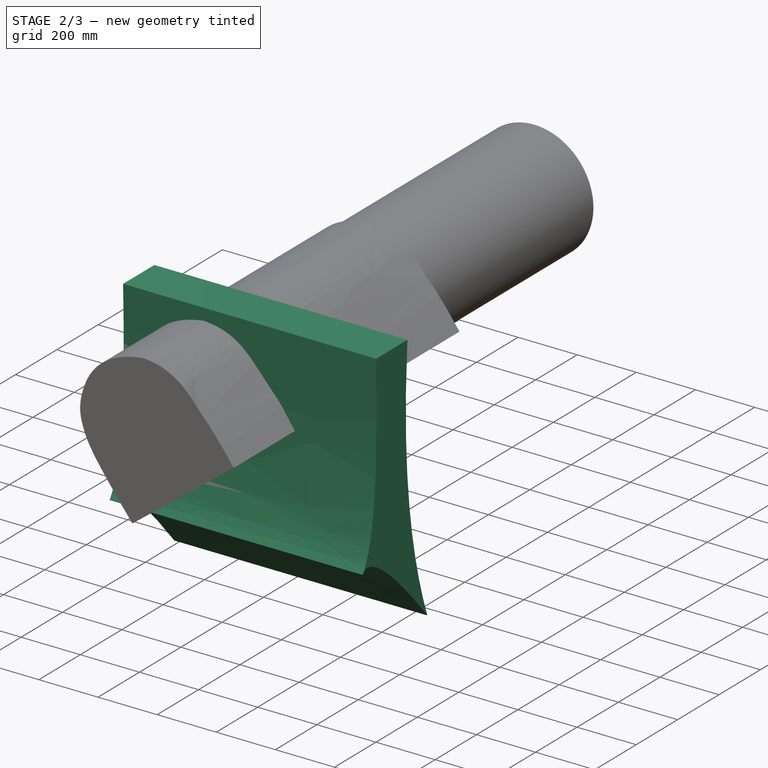
[diagram: stage 2 of 3 — iso view after this stage's code; geometry added in this stage tinted green]
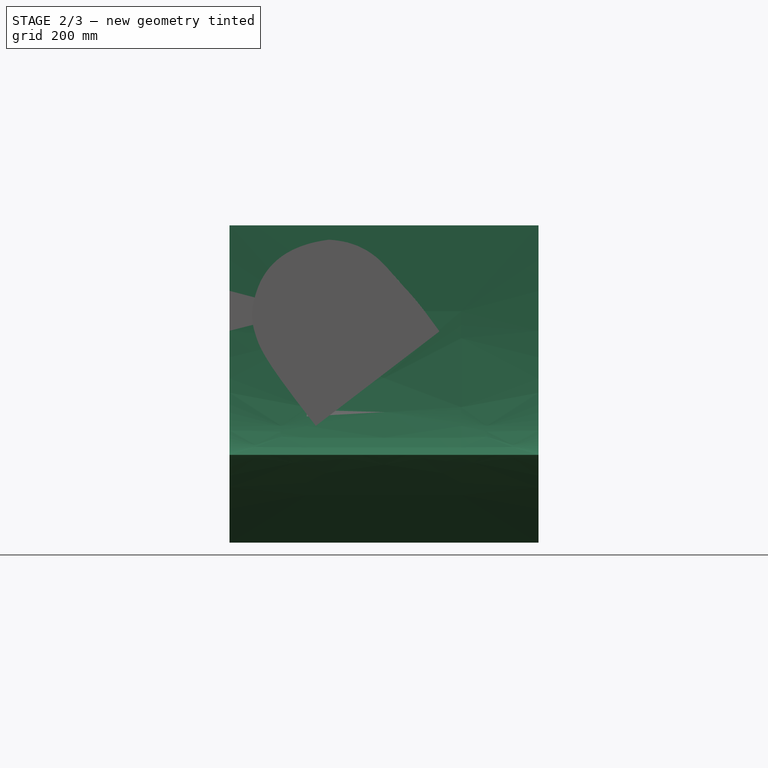
[diagram: stage 2 of 3 — front view after this stage's code; geometry added in this stage tinted green]
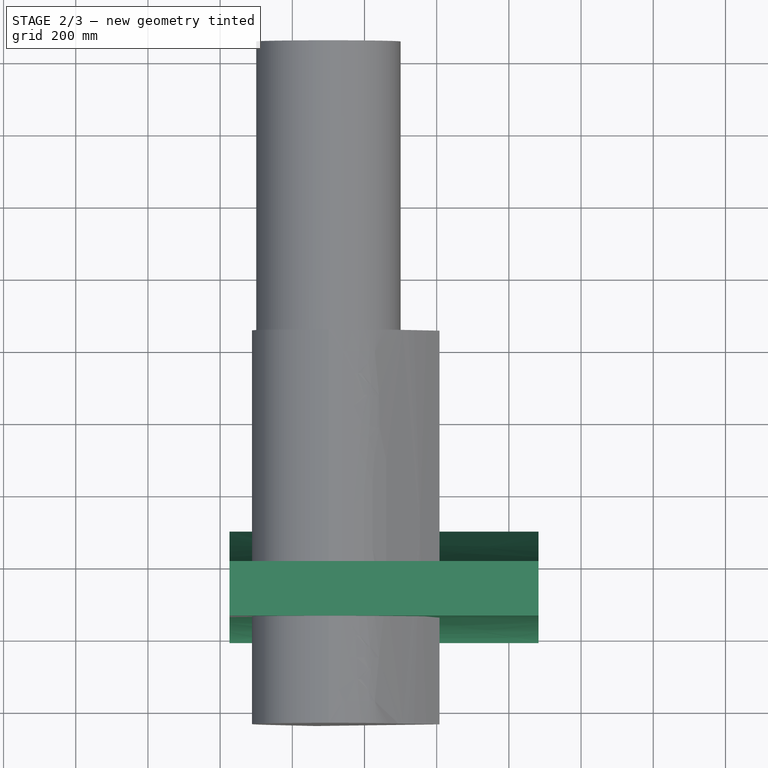
[diagram: stage 2 of 3 — top view after this stage's code; geometry added in this stage tinted green]
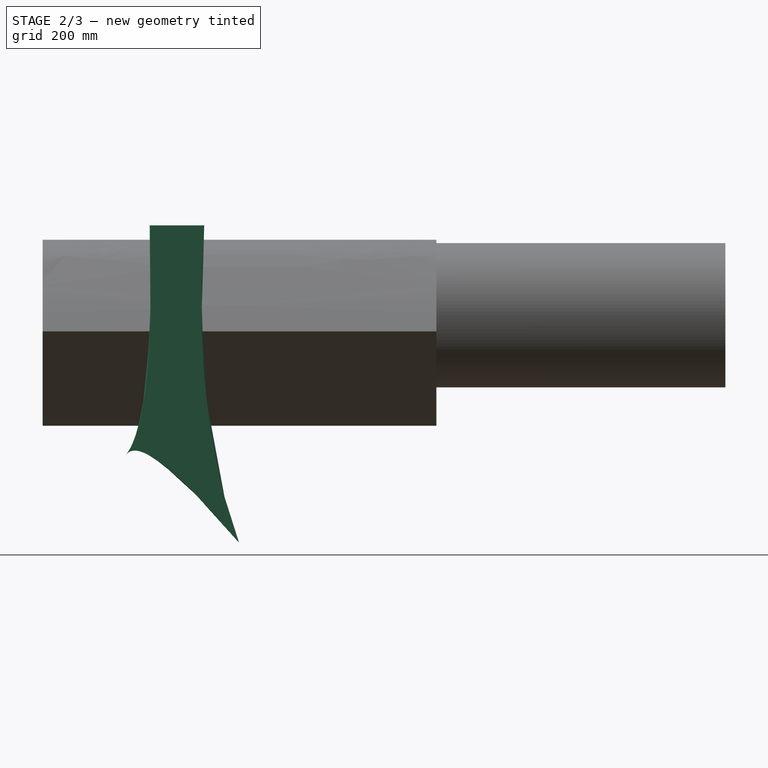
[diagram: stage 2 of 3 — right view after this stage's code; geometry added in this stage tinted green]
FEATURE [Sketcher::SketchObject] Sketch
  Placement = pos=(0,0,0) rot=(-1,0,0;4.71239rad)
  sketch-geometry (28):
    g0-g3: Circle [constr] x4 (B-spline internal-alignment scaffolding for g4; pole/knot coordinates omitted)
    g4: BSplineCurve PolesCount=4 KnotsCount=2 Degree=3 IsPeriodic=0
    g5: GeomPoint [constr] X=4905.52 Y=82.9888 Z=0
    g6: GeomPoint [constr] X=4700.76 Y=209.36 Z=0
    g7-g12: Circle [constr] x6 (B-spline internal-alignment scaffolding for g13; pole/knot coordinates omitted)
    g13: BSplineCurve PolesCount=6 KnotsCount=4 Degree=3 IsPeriodic=0
    g14-g17: GeomPoint [constr] x4 (B-spline internal-alignment scaffolding for g13; pole/knot coordinates omitted)
    g18: Circle [constr] CenterX=4665.08 CenterY=-306.243 CenterZ=0 NormalX=0 NormalY=0 NormalZ=1 AngleXU=0 Radius=10
    g19: Circle [constr] CenterX=4665.08 CenterY=-306.243 CenterZ=0 NormalX=0 NormalY=0 NormalZ=1 AngleXU=0 Radius=9
    g20: Circle [constr] CenterX=4665.08 CenterY=-306.243 CenterZ=0 NormalX=0 NormalY=0 NormalZ=1 AngleXU=0 Radius=9
    g21: Circle [constr] CenterX=4905.52 CenterY=82.9888 CenterZ=0 NormalX=0 NormalY=0 NormalZ=1 AngleXU=0 Radius=30
    g22: Circle [constr] CenterX=4950.33 CenterY=36.7333 CenterZ=0 NormalX=0 NormalY=0 NormalZ=1 AngleXU=0 Radius=30
    g23: Circle [constr] CenterX=5007.66 CenterY=-44.6097 CenterZ=0 NormalX=0 NormalY=0 NormalZ=1 AngleXU=0 Radius=30
    g24: BSplineCurve PolesCount=3 KnotsCount=2 Degree=2 IsPeriodic=0
    g25: GeomPoint [constr] X=4905.52 Y=82.9888 Z=0
    g26: GeomPoint [constr] X=5007.66 Y=-44.6097 Z=0
    g27: LineSegment StartX=4665.08 StartY=-306.243 StartZ=0 EndX=5007.66 EndY=-44.6097 EndZ=0
  constraints (29):
    c: Radius(g0) = 40
    c: Equal(g0,g1)
    c: Equal(g0,g2)
    c: Equal(g0,g3)
    c: InternalAlignment(g0-g3 -> g4) x4
    c: InternalAlignment(g5,g4)
    c: InternalAlignment(g6,g4)
    c: Radius(g7) = 30
    c: Equal(g7, g8-g12) x5
    c: Coincident(g12,g3)
    c: InternalAlignment(g7-g12 -> g13) x6
    c: InternalAlignment(g14-g17 -> g13) x4
    c: Coincident(g18,g7)
    c: Radius(g18) = 10
    c: Coincident(g19,g14)
    c: Radius(g19) = 9
    c: Equal(g19,g20)
    c: Coincident(g21,g0)
    c: Radius(g21) = 30
    c: Equal(g21,g22)
    c: Equal(g21,g23)
    c: InternalAlignment(g21,g24)
    c: InternalAlignment(g22,g24)
    c: InternalAlignment(g23,g24)
    c: InternalAlignment(g25,g24)
    c: InternalAlignment(g26,g24)
    c: Coincident(g27,g20)
    c: Coincident(g27,g23)
    c: Coincident(g20,g7)
FEATURE [Sketcher::SketchObject] Sketch001
  Placement = pos=(4700,0,0) rot=(0.57735,0.57735,0.57735;2.0944rad)
  sketch-geometry (19):
    g0: Circle [constr] CenterX=-810.15 CenterY=-386.833 CenterZ=0 NormalX=0 NormalY=0 NormalZ=1 AngleXU=0 Radius=40
    g1: Circle [constr] CenterX=-728.285 CenterY=-278.867 CenterZ=0 NormalX=0 NormalY=0 NormalZ=1 AngleXU=0 Radius=40
    g2: Circle [constr] CenterX=-744.82 CenterY=249.19 CenterZ=0 NormalX=0 NormalY=0 NormalZ=1 AngleXU=0 Radius=40
    g3: BSplineCurve PolesCount=3 KnotsCount=2 Degree=2 IsPeriodic=0
    g4: GeomPoint [constr] X=-810.15 Y=-386.833 Z=0
    g5: GeomPoint [constr] X=-744.82 Y=249.19 Z=0
    g6: Circle [constr] CenterX=-497.182 CenterY=-630.037 CenterZ=0 NormalX=0 NormalY=0 NormalZ=1 AngleXU=0 Radius=50
    g7: Circle [constr] CenterX=-629.927 CenterY=-276.374 CenterZ=0 NormalX=0 NormalY=0 NormalZ=1 AngleXU=0 Radius=50
    g8: Circle [constr] CenterX=-593.692 CenterY=249.19 CenterZ=0 NormalX=0 NormalY=0 NormalZ=1 AngleXU=0 Radius=50
    g9: BSplineCurve PolesCount=3 KnotsCount=2 Degree=2 IsPeriodic=0
    g10: GeomPoint [constr] X=-497.182 Y=-630.037 Z=0
    g11: GeomPoint [constr] X=-593.692 Y=249.19 Z=0
    g12: LineSegment StartX=-744.82 StartY=249.19 StartZ=0 EndX=-593.692 EndY=249.19 EndZ=0
    g13: Circle [constr] CenterX=-497.182 CenterY=-630.037 CenterZ=0 NormalX=0 NormalY=0 NormalZ=1 AngleXU=0 Radius=30
    g14: Circle [constr] CenterX=-761.188 CenterY=-319.261 CenterZ=0 NormalX=0 NormalY=0 NormalZ=1 AngleXU=0 Radius=30
    g15: Circle [constr] CenterX=-810.15 CenterY=-386.833 CenterZ=0 NormalX=0 NormalY=0 NormalZ=1 AngleXU=0 Radius=30
    g16: BSplineCurve PolesCount=3 KnotsCount=2 Degree=2 IsPeriodic=0
    g17: GeomPoint [constr] X=-497.182 Y=-630.037 Z=0
    g18: GeomPoint [constr] X=-810.15 Y=-386.833 Z=0
  constraints (29):
    c: Radius(g0) = 40
    c: Equal(g0,g1)
    c: Equal(g0,g2)
    c: InternalAlignment(g0,g3)
    c: InternalAlignment(g1,g3)
    c: InternalAlignment(g2,g3)
    c: InternalAlignment(g4,g3)
    c: InternalAlignment(g5,g3)
    c: Radius(g6) = 50
    c: Equal(g6,g7)
    c: Equal(g6,g8)
    c: InternalAlignment(g6,g9)
    c: InternalAlignment(g7,g9)
    c: InternalAlignment(g8,g9)
    c: InternalAlignment(g10,g9)
    c: InternalAlignment(g11,g9)
    c: Coincident(g12,g2)
    c: Coincident(g12,g8)
    c: Horizontal(g12)
    c: Coincident(g13,g6)
    c: Radius(g13) = 30
    c: Equal(g13,g14)
    c: Equal(g13,g15)
    c: Coincident(g15,g0)
    c: InternalAlignment(g13,g16)
    c: InternalAlignment(g14,g16)
    c: InternalAlignment(g15,g16)
    c: InternalAlignment(g17,g16)
    c: InternalAlignment(g18,g16)
FEATURE [Sketcher::SketchObject] Sketch002
  Placement = pos=(4700,0,0) rot=(0.57735,0.57735,0.57735;2.0944rad)
  sketch-geometry (1):
    g0: LineSegment StartX=-1041.27 StartY=-2.46611 StartZ=0 EndX=49.4935 EndY=-2.46611 EndZ=0
  constraints (1):
    c: Horizontal(g0)
FEATURE [Sketcher::SketchObject] Sketch003
  Placement = pos=(0,-730,0) rot=(-1,0,0;4.71239rad)
  sketch-geometry (1):
    g0: LineSegment StartX=4426.08 StartY=-121.399 StartZ=0 EndX=5281.87 EndY=-121.399 EndZ=0
  constraints (1):
    c: Horizontal(g0)
FEATURE [Part::Sweep] Sweep
  Frenet = false
  Sections = -> [Sketch001]
  Solid = true
  Spine = -> Sketch003 [Edge1]
  Transition = 1
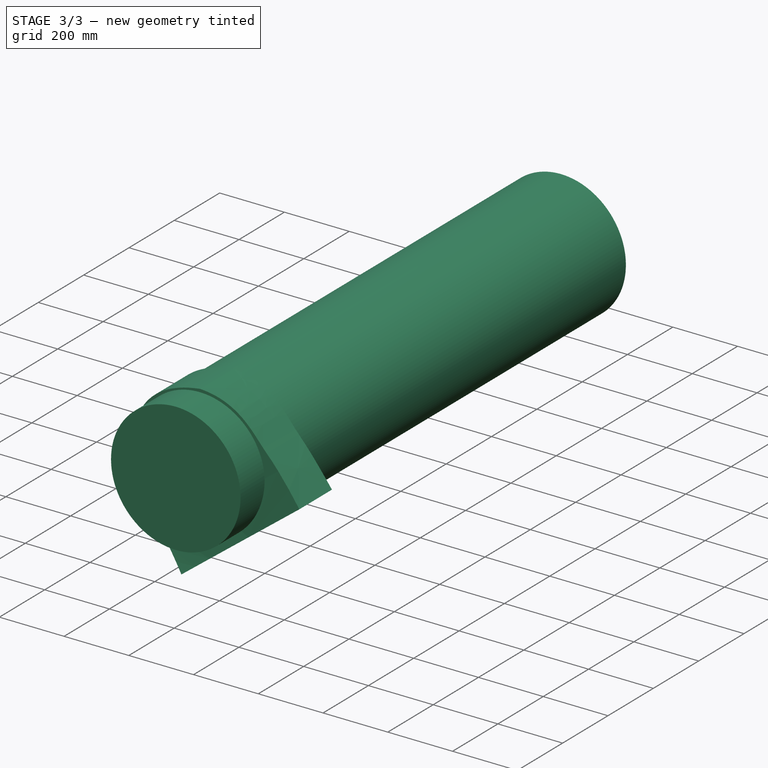
[diagram: stage 3 of 3 — iso view after this stage's code; geometry added in this stage tinted green]
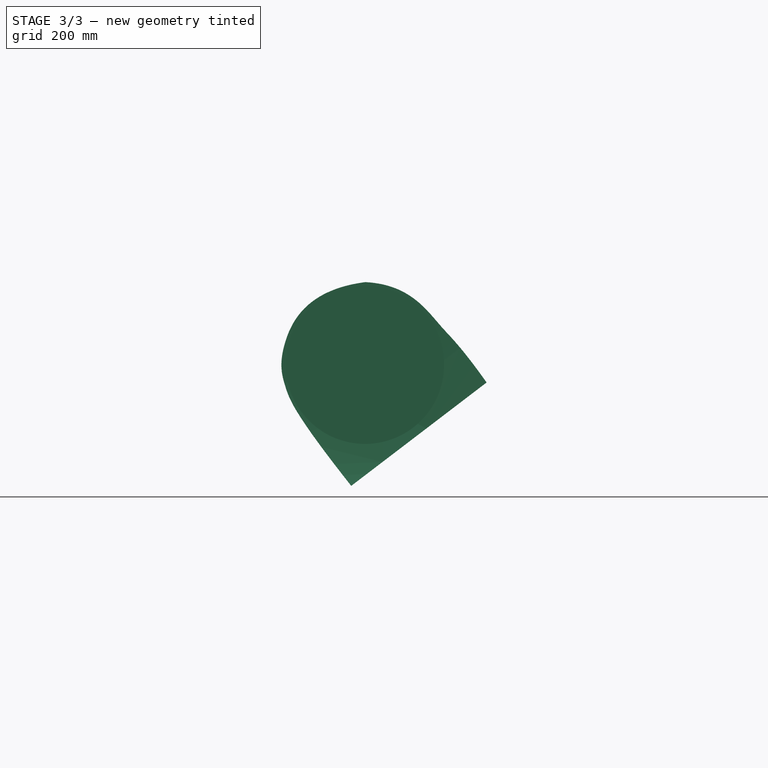
[diagram: stage 3 of 3 — front view after this stage's code; geometry added in this stage tinted green]
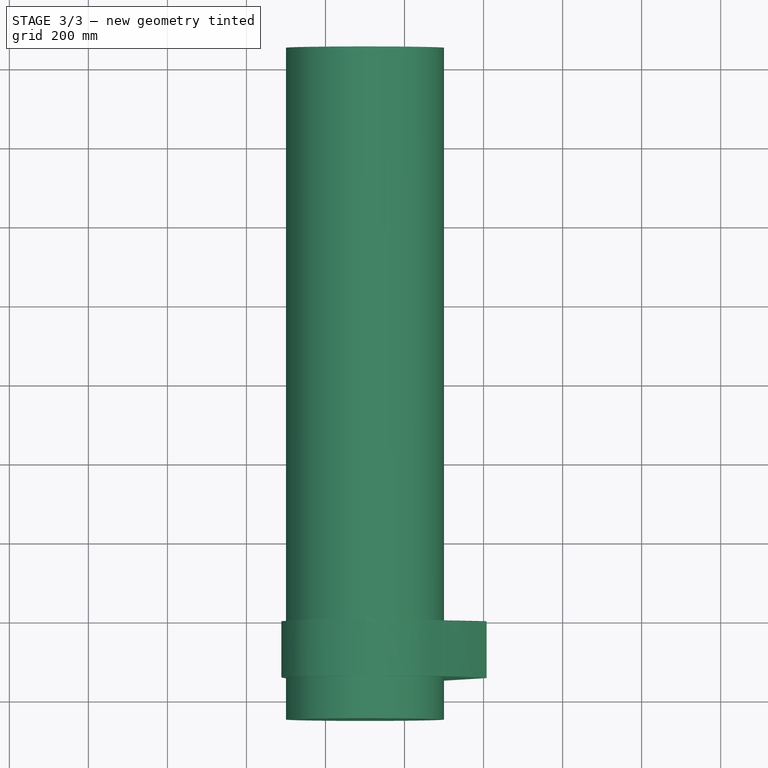
[diagram: stage 3 of 3 — top view after this stage's code; geometry added in this stage tinted green]
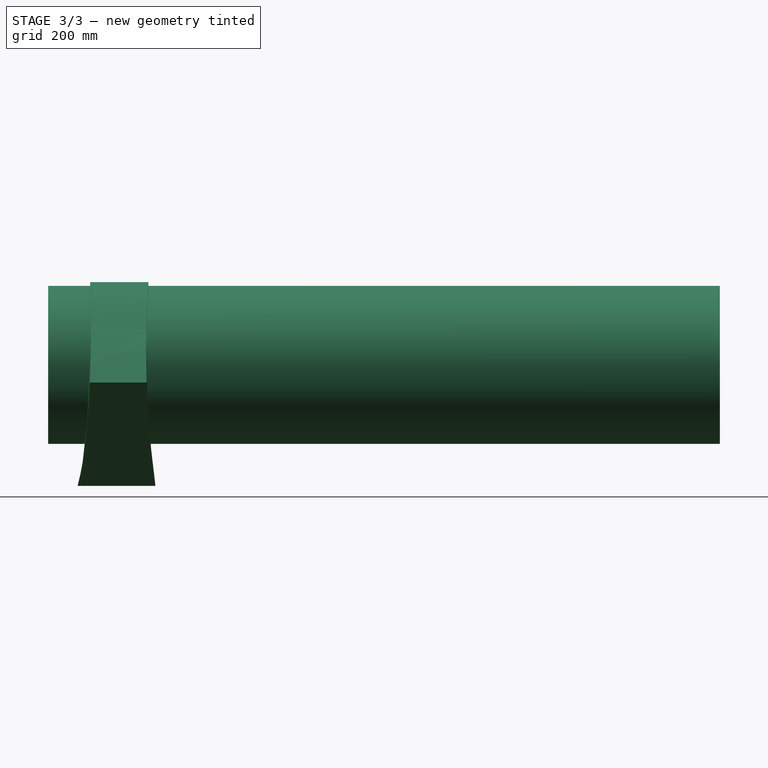
[diagram: stage 3 of 3 — right view after this stage's code; geometry added in this stage tinted green]
FEATURE [Part::Cylinder] Cylinder
  Angle = 360
  AttacherType = Attacher::AttachEngine3D
  Height = 1700
  Placement = pos=(4700,850,0) rot=(1,0,0;1.5708rad)
  Radius = 200
FEATURE [Part::MultiCommon] Common
  Shapes = -> [Sweep001,Sweep]
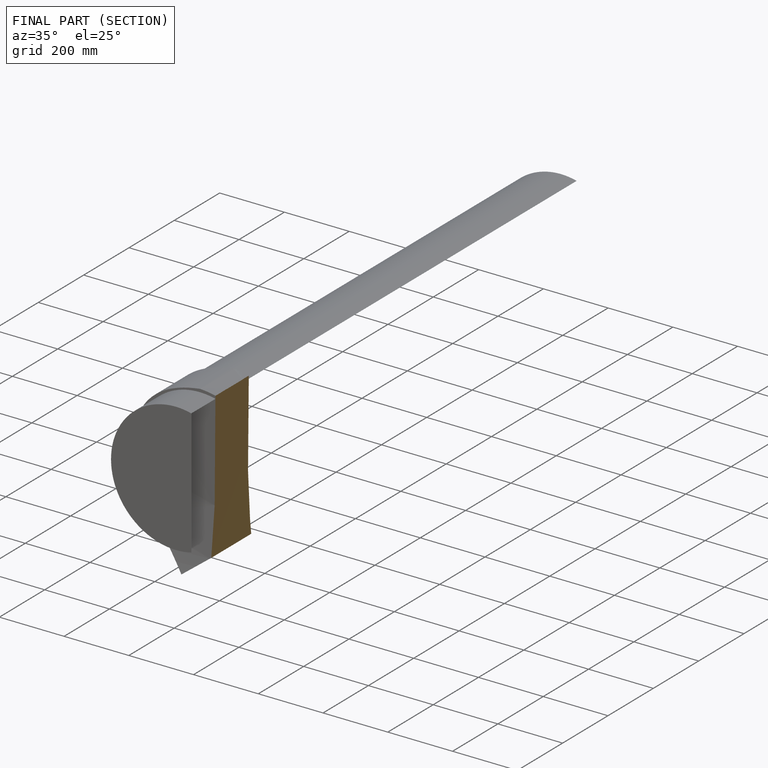
[diagram: finished part — half-section view (interior)]
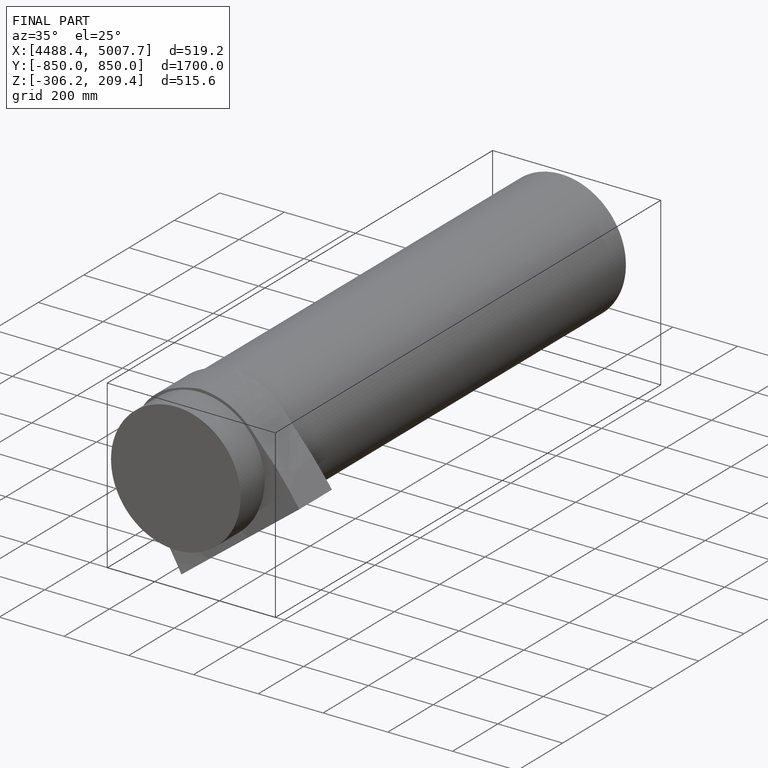
[diagram: finished part — iso view with bounding-box wireframe]
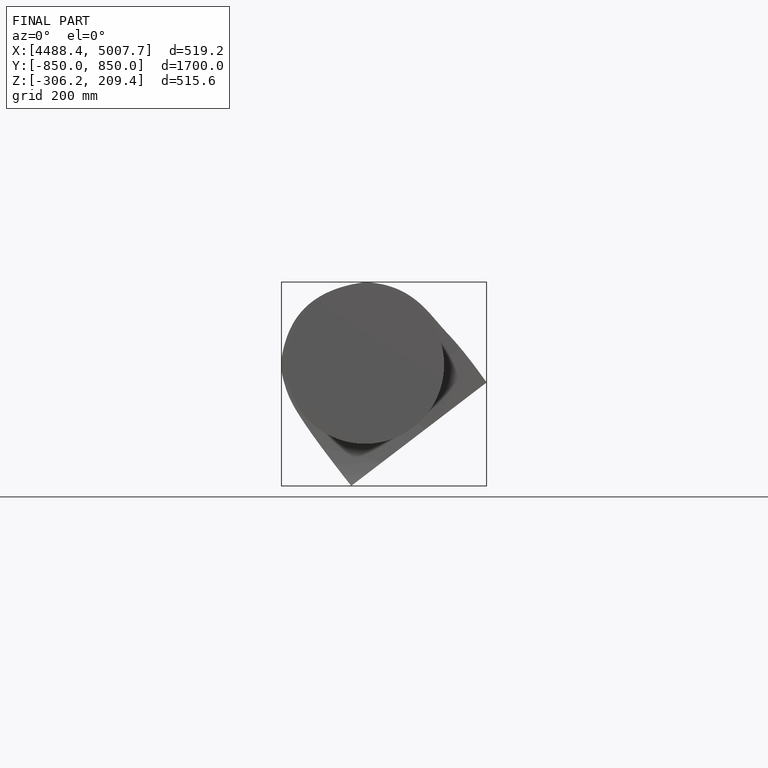
[diagram: finished part — front view with bounding-box wireframe]
